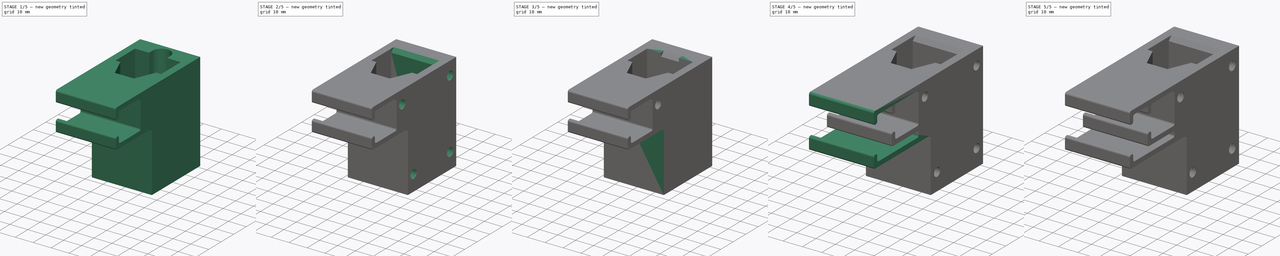
[diagram: build sequence overview — one tinted view per stage of 5, left to right]
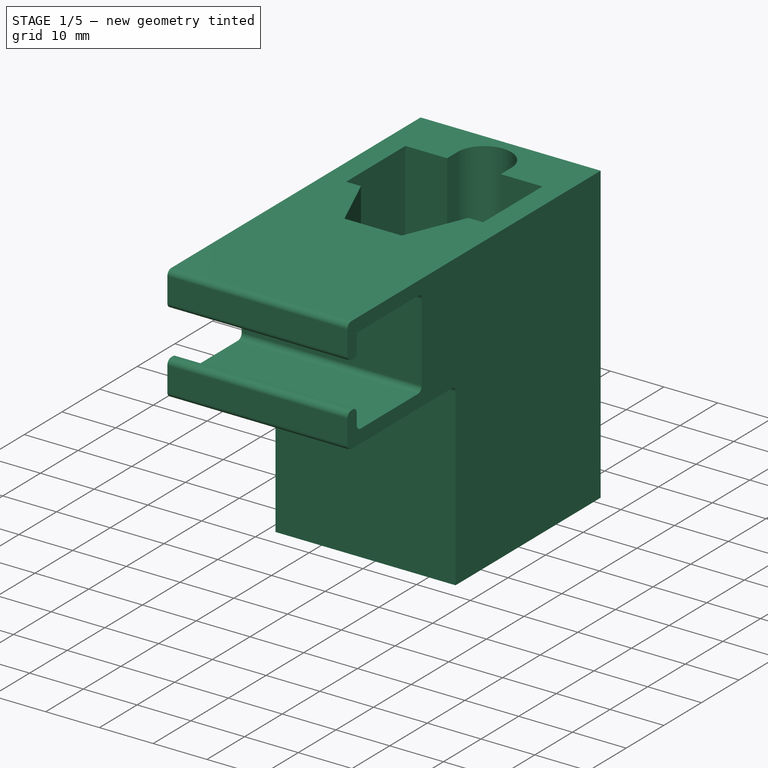
[diagram: stage 1 of 5 — iso view after this stage's code; geometry added in this stage tinted green]
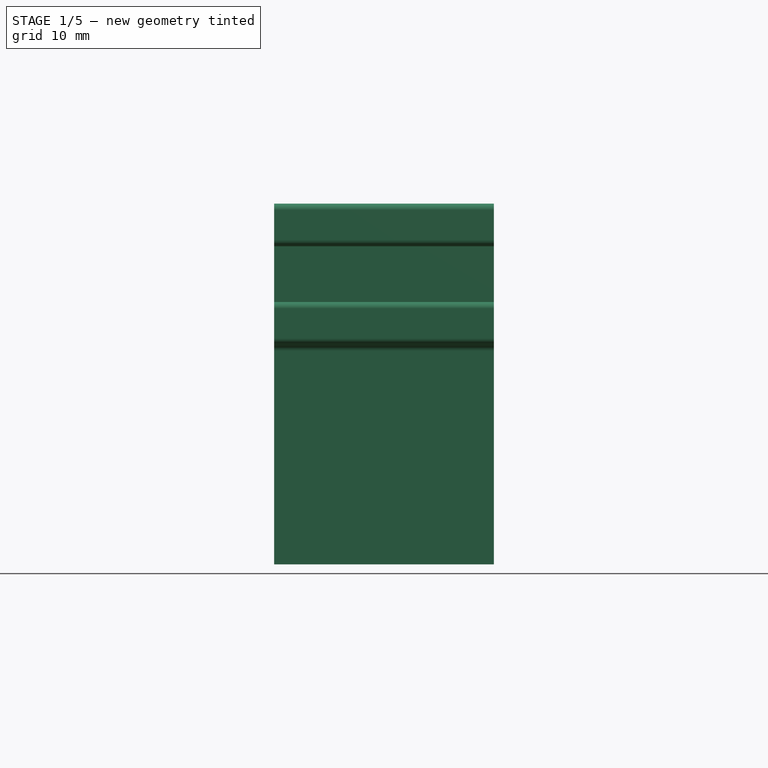
[diagram: stage 1 of 5 — front view after this stage's code; geometry added in this stage tinted green]
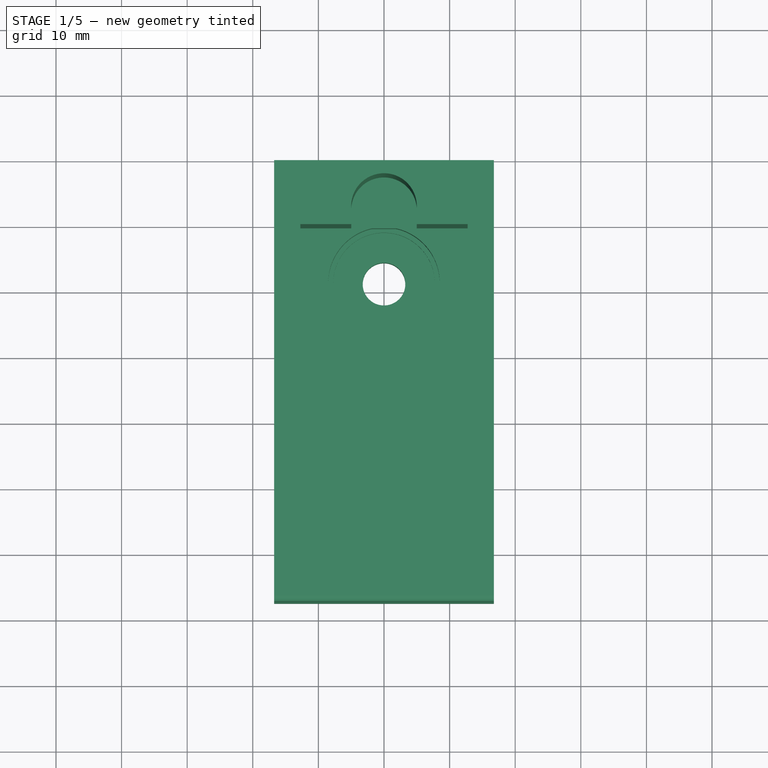
[diagram: stage 1 of 5 — top view after this stage's code; geometry added in this stage tinted green]
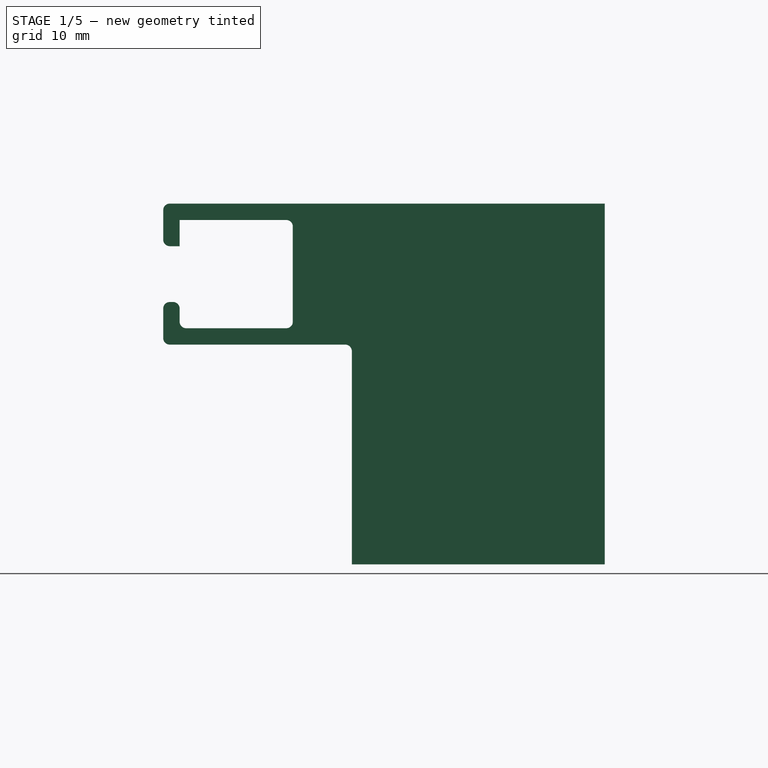
[diagram: stage 1 of 5 — right view after this stage's code; geometry added in this stage tinted green]
FCSTD DOCUMENT  (FreeCAD 1.0R39319 (Git))
Label: StarTech 1ft Adapter Mount
License: All rights reserved
LicenseURL: http://en.wikipedia.org/wiki/All_rights_reserved
objects: Sketcher::SketchObject×32, PartDesign::Pad×12, PartDesign::Pocket×12, PartDesign::SubtractiveHelix×8, PartDesign::Body×6, PartDesign::Fillet×4, PartDesign::Plane×4, PartDesign::FeatureBase×4, PartDesign::Chamfer×2, App::Part×2
note: 196 computed .brp shape members not serialized (recipe doc carries the construction recipe); baked Part::Feature solids carry a one-line shape summary decoded from their .brp

FEATURE [PartDesign::Body] Body002  label="-Right"
  AllowCompound = false
  Group = -> [Clone001,Sketch010,Pocket004]
  Origin = -> Origin002
  Tip = -> Pocket004
FEATURE [App::Part] Part  label="Top"
  Group = -> [Body,Body002,Body001]
  Origin = -> Origin003
FEATURE [Sketcher::SketchObject] Sketch016
  ArcFitTolerance = 1e-06
  AttachmentSupport = -> [XY_Plane004]
  FullyConstrained = true
  MakeInternals = false
  MapMode = 5
  sketch-geometry (23):
    g0: LineSegment StartX=-12.75 StartY=9.525 StartZ=0 EndX=-5 EndY=9.525 EndZ=0
    g1: LineSegment StartX=-5 StartY=9.525 StartZ=0 EndX=-5 EndY=12.275 EndZ=0
    g2: ArcOfCircle CenterX=-5e-16 CenterY=12.275 CenterZ=0 NormalX=0 NormalY=0 NormalZ=1 AngleXU=0 Radius=5 StartAngle=0 EndAngle=3.14159
    g3: LineSegment StartX=5 StartY=12.275 StartZ=0 EndX=5 EndY=9.525 EndZ=0
    g4: LineSegment StartX=5 StartY=9.525 StartZ=0 EndX=12.75 EndY=9.525 EndZ=0
    g5: LineSegment StartX=12.75 StartY=9.525 StartZ=0 EndX=12.75 EndY=-6.225 EndZ=0
    g6: LineSegment StartX=12.75 StartY=-6.225 StartZ=0 EndX=10 EndY=-6.225 EndZ=0
    g7: LineSegment StartX=10 StartY=-6.225 StartZ=0 EndX=5.32052 EndY=-17.275 EndZ=0
    g8: LineSegment StartX=5.32052 StartY=-17.275 StartZ=0 EndX=-5.32052 EndY=-17.275 EndZ=0
    g9: LineSegment StartX=-5.32052 StartY=-17.275 StartZ=0 EndX=-10 EndY=-6.225 EndZ=0
    g10: LineSegment StartX=-10 StartY=-6.225 StartZ=0 EndX=-12.75 EndY=-6.225 EndZ=0
    g11: LineSegment StartX=-12.75 StartY=-6.225 StartZ=0 EndX=-12.75 EndY=9.525 EndZ=0
    g12: LineSegment [constr] StartX=-5 StartY=9.525 StartZ=0 EndX=5 EndY=9.525 EndZ=0
    g13: LineSegment [constr] StartX=-10 StartY=-6.225 StartZ=0 EndX=10 EndY=-6.225 EndZ=0
    g14: LineSegment [constr] StartX=-6e-16 StartY=17.275 StartZ=0 EndX=-6e-16 EndY=9.525 EndZ=0
    g15: LineSegment [constr] StartX=-6e-16 StartY=17.275 StartZ=0 EndX=6e-16 EndY=-17.275 EndZ=0
    g16: LineSegment StartX=-16.75 StartY=-19.275 StartZ=0 EndX=16.75 EndY=-19.275 EndZ=0
    g17: LineSegment StartX=16.75 StartY=-19.275 StartZ=0 EndX=16.75 EndY=19.275 EndZ=0
    g18: LineSegment StartX=16.75 StartY=19.275 StartZ=0 EndX=-16.75 EndY=19.275 EndZ=0
    g19: LineSegment StartX=-16.75 StartY=19.275 StartZ=0 EndX=-16.75 EndY=-19.275 EndZ=0
    g20: GeomPoint [constr] X=0 Y=0 Z=0
    g21: LineSegment [constr] StartX=-6e-16 StartY=17.275 StartZ=0 EndX=1e-16 EndY=19.275 EndZ=0
    g22: LineSegment [constr] StartX=12.75 StartY=-6.225 StartZ=0 EndX=16.75 EndY=-6.225 EndZ=0
  constraints (60):
    c: Horizontal(g0)
    c: Coincident(g0,g1)
    c: Vertical(g1)
    c: Tangent(g1,g2) = 1.5708
    c: Vertical(g3)
    c: Coincident(g3,g4)
    c: Horizontal(g4)
    c: Coincident(g4,g5)
    c: Vertical(g5)
    c: Coincident(g5,g6)
    c: Horizontal(g6)
    c: Coincident(g6,g7)
    c: Coincident(g7,g8)
    c: Horizontal(g8)
    c: Coincident(g8,g9)
    c: Coincident(g9,g10)
    c: Horizontal(g10)
    c: Coincident(g10,g11)
    c: Coincident(g11,g0)
    c: Vertical(g11)
    c: Coincident(g12,g0)
    c: Coincident(g12,g3)
    c: Horizontal(g12)
    c: Coincident(g13,g9)
    c: Coincident(g13,g6)
    c: Horizontal(g13)
    c: Equal(g7,g9)
    c: Equal(g10,g6)
    c: Equal(g4,g0)
    c: Distance(g11) = 15.75
    c: Distance(g6) = 2.75
    c: Distance(g0) = 7.75
    c: Tangent(g2,g3) = 1.5708
    c: PointOnObject(g14,g2)
    c: Symmetric(g12,g12,g14)
    c: Vertical(g14)
    c: Distance(g14) = 7.75
    c: Distance(g12) = 10
    c: Coincident(g15,g14)
    c: Symmetric(g8,g8,g15)
    c: Symmetric(g14,g15,g-1)
    c: Distance(g15) = 34.55
    c: Distance(g9) = 12
    c: Coincident(g16,g17)
    c: Coincident(g17,g18)
    c: Coincident(g18,g19)
    c: Coincident(g19,g16)
    c: Horizontal(g16)
    c: Horizontal(g18)
    c: Vertical(g17)
    c: Vertical(g19)
    c: Symmetric(g18,g16,g20)
    c: Coincident(g20,g-1)
    c: Coincident(g21,g14)
    c: Symmetric(g18,g18,g21)
    c: Coincident(g22,g5)
    c: PointOnObject(g22,g17)
    c: Horizontal(g22)
    c: Distance(g21) = 2
    c: Distance(g22) = 4
FEATURE [PartDesign::Pad] Pad006
  Direction = (0,0,1)
  Length = 55
  Length2 = 10
  Profile = -> Sketch016
  ReferenceAxis = -> Sketch016 [N_Axis]
  Refine = true
  Suppressed = false
  Type = 0
FEATURE [Sketcher::SketchObject] Sketch017
  ArcFitTolerance = 1e-06
  AttachmentSupport = -> [Pad006]
  ExternalGeometry = -> [Pad006]
  FullyConstrained = true
  MakeInternals = false
  MapMode = 5
  Placement = pos=(0,0,0) rot=(1,0,0;3.14159rad)
  sketch-geometry (9):
    g0: LineSegment StartX=-16.75 StartY=19.275 StartZ=0 EndX=-16.75 EndY=-19.275 EndZ=0
    g1: LineSegment StartX=-16.75 StartY=-19.275 StartZ=0 EndX=16.75 EndY=-19.275 EndZ=0
    g2: LineSegment StartX=16.75 StartY=-19.275 StartZ=0 EndX=16.75 EndY=19.275 EndZ=0
    g3: LineSegment StartX=16.75 StartY=19.275 StartZ=0 EndX=-16.75 EndY=19.275 EndZ=0
    g4: LineSegment [constr] StartX=-5 StartY=-9.525 StartZ=0 EndX=5 EndY=-9.525 EndZ=0
    g5: LineSegment [constr] StartX=-4e-16 StartY=-9.525 StartZ=0 EndX=0 EndY=7.075 EndZ=0
    g6: Circle [constr] CenterX=-2e-16 CenterY=-1.225 CenterZ=0 NormalX=0 NormalY=0 NormalZ=1 AngleXU=0 Radius=8.5
    g7: ArcOfCircle CenterX=-1e-15 CenterY=-1.225 CenterZ=0 NormalX=0 NormalY=0 NormalZ=1 AngleXU=0 Radius=8.5 StartAngle=4.92975 EndAngle=10.7782
    g8: LineSegment StartX=-1.83303 StartY=-9.525 StartZ=0 EndX=1.83303 EndY=-9.525 EndZ=0
  constraints (23):
    c: Coincident(g0,g1)
    c: Coincident(g1,g2)
    c: Coincident(g2,g3)
    c: Coincident(g3,g0)
    c: Vertical(g0)
    c: Vertical(g2)
    c: Horizontal(g1)
    c: Horizontal(g3)
    c: Coincident(g0,g-3)
    c: Coincident(g1,g-4)
    c: Coincident(g4,g-5)
    c: Coincident(g4,g-6)
    c: Symmetric(g4,g4,g5)
    c: PointOnObject(g5,g-2)
    c: Distance(g5) = 16.6
    c: Diameter(g6) = 17
    c: Symmetric(g5,g5,g6)
    c: PointOnObject(g7,g4)
    c: PointOnObject(g7,g4)
    c: Tangent(g7,g6) = -1.5708
    c: Equal(g6,g7)
    c: Coincident(g8,g7)
    c: Coincident(g8,g7)
FEATURE [PartDesign::Pad] Pad007
  BaseFeature = -> Pad006
  Direction = (0,0,-1)
  Length = 18
  Length2 = 10
  Offset = 36.5
  Profile = -> Sketch017
  ReferenceAxis = -> Sketch017 [N_Axis]
  Refine = true
  Reversed = true
  Suppressed = false
  Type = 0
FEATURE [Sketcher::SketchObject] Sketch018
  ArcFitTolerance = 1e-06
  AttachmentSupport = -> [Pad007]
  ExternalGeometry = -> [Pad007]
  FullyConstrained = true
  MakeInternals = false
  MapMode = 5
  Placement = pos=(0,0,0) rot=(1,0,0;3.14159rad)
  sketch-geometry (5):
    g0: Circle CenterX=-1e-15 CenterY=-1.225 CenterZ=0 NormalX=0 NormalY=0 NormalZ=1 AngleXU=0 Radius=7.75
    g1: LineSegment StartX=-16.75 StartY=19.275 StartZ=0 EndX=-16.75 EndY=-19.275 EndZ=0
    g2: LineSegment StartX=-16.75 StartY=-19.275 StartZ=0 EndX=16.75 EndY=-19.275 EndZ=0
    g3: LineSegment StartX=16.75 StartY=-19.275 StartZ=0 EndX=16.75 EndY=19.275 EndZ=0
    g4: LineSegment StartX=16.75 StartY=19.275 StartZ=0 EndX=-16.75 EndY=19.275 EndZ=0
  constraints (12):
    c: Coincident(g0,g-3)
    c: Diameter(g0) = 15.5
    c: Coincident(g1,g2)
    c: Coincident(g2,g3)
    c: Coincident(g3,g4)
    c: Coincident(g4,g1)
    c: Vertical(g1)
    c: Vertical(g3)
    c: Horizontal(g2)
    c: Horizontal(g4)
    c: Coincident(g1,g-4)
    c: Coincident(g2,g-5)
FEATURE [PartDesign::Pad] Pad008
  BaseFeature = -> Pad007
  Direction = (0,0,-1)
  Length = 11
  Length2 = 10
  Profile = -> Sketch018
  ReferenceAxis = -> Sketch018 [N_Axis]
  Refine = true
  Reversed = true
  Suppressed = false
  Type = 0
FEATURE [Sketcher::SketchObject] Sketch019
  ArcFitTolerance = 1e-06
  AttachmentSupport = -> [Pad008]
  ExternalGeometry = -> [Pad008]
  FullyConstrained = true
  MakeInternals = false
  MapMode = 5
  Placement = pos=(0,0,0) rot=(1,0,0;3.14159rad)
  sketch-geometry (1):
    g0: Circle CenterX=0 CenterY=-1.225 CenterZ=0 NormalX=0 NormalY=0 NormalZ=1 AngleXU=0 Radius=9
  constraints (2):
    c: Coincident(g0,g-3)
    c: Diameter(g0) = 18
FEATURE [PartDesign::Pocket] Pocket006
  BaseFeature = -> Pad008
  Direction = (0,0,1)
  Length = 9
  Length2 = 5
  Profile = -> Sketch019
  ReferenceAxis = -> Sketch019 [N_Axis]
  Refine = true
  Suppressed = false
  Type = 0
FEATURE [Sketcher::SketchObject] Sketch020
  ArcFitTolerance = 1e-06
  AttachmentSupport = -> [Pocket006]
  ExternalGeometry = -> [Pocket006]
  FullyConstrained = true
  MakeInternals = false
  MapMode = 5
  Placement = pos=(0,0,0) rot=(1,0,0;3.14159rad)
  sketch-geometry (5):
    g0: Circle CenterX=0 CenterY=-1.225 CenterZ=0 NormalX=0 NormalY=0 NormalZ=1 AngleXU=0 Radius=3.25
    g1: LineSegment StartX=-16.75 StartY=19.275 StartZ=0 EndX=-16.75 EndY=-19.275 EndZ=0
    g2: LineSegment StartX=-16.75 StartY=-19.275 StartZ=0 EndX=16.75 EndY=-19.275 EndZ=0
    g3: LineSegment StartX=16.75 StartY=-19.275 StartZ=0 EndX=16.75 EndY=19.275 EndZ=0
    g4: LineSegment StartX=16.75 StartY=19.275 StartZ=0 EndX=-16.75 EndY=19.275 EndZ=0
  constraints (12):
    c: Coincident(g0,g-5)
    c: Coincident(g1,g2)
    c: Coincident(g2,g3)
    c: Coincident(g3,g4)
    c: Coincident(g4,g1)
    c: Vertical(g1)
    c: Vertical(g3)
    c: Horizontal(g2)
    c: Horizontal(g4)
    c: Coincident(g1,g-3)
    c: Coincident(g2,g-4)
    c: Diameter(g0) = 6.5
FEATURE [PartDesign::Pad] Pad009
  BaseFeature = -> Pocket006
  Direction = (0,0,-1)
  Length = 6
  Length2 = 10
  Profile = -> Sketch020
  ReferenceAxis = -> Sketch020 [N_Axis]
  Refine = true
  Reversed = true
  Suppressed = false
  Type = 0
FEATURE [Sketcher::SketchObject] Sketch021
  ArcFitTolerance = 1e-06
  AttachmentSupport = -> [Pad009]
  ExternalGeometry = -> [Pad009]
  FullyConstrained = true
  MakeInternals = false
  MapMode = 5
  Placement = pos=(16.75,0,0) rot=(0.57735,0.57735,0.57735;2.0944rad)
  sketch-geometry (4):
    g0: LineSegment StartX=-19.275 StartY=55 StartZ=0 EndX=-48.025 EndY=55 EndZ=0
    g1: LineSegment StartX=-48.025 StartY=55 StartZ=0 EndX=-48.025 EndY=33.5 EndZ=0
    g2: LineSegment StartX=-48.025 StartY=33.5 StartZ=0 EndX=-19.275 EndY=33.5 EndZ=0
    g3: LineSegment StartX=-19.275 StartY=33.5 StartZ=0 EndX=-19.275 EndY=55 EndZ=0
  constraints (11):
    c: Coincident(g0,g1)
    c: Coincident(g1,g2)
    c: Coincident(g2,g3)
    c: Coincident(g3,g0)
    c: Horizontal(g0)
    c: Horizontal(g2)
    c: Vertical(g1)
    c: Vertical(g3)
    c: Coincident(g0,g-3)
    c: Distance(g0) = 28.75
    c: Distance(g1) = 21.5
FEATURE [PartDesign::Pad] Pad010
  BaseFeature = -> Pad009
  Direction = (1,0,0)
  Length = 10
  Length2 = 10
  Profile = -> Sketch021
  ReferenceAxis = -> Sketch021 [N_Axis]
  Refine = true
  Suppressed = false
  Type = 3
  UpToFace = -> Pad009 [Face26]
FEATURE [Sketcher::SketchObject] Sketch022
  ArcFitTolerance = 1e-06
  AttachmentSupport = -> [Pad010]
  ExternalGeometry = -> [Pad010]
  FullyConstrained = true
  MakeInternals = false
  MapMode = 5
  Placement = pos=(16.75,0,0) rot=(0.57735,0.57735,0.57735;2.0944rad)
  sketch-geometry (17):
    g0: LineSegment StartX=-48.025 StartY=48.5 StartZ=0 EndX=-48.025 EndY=40 EndZ=0
    g1: LineSegment StartX=-48.025 StartY=40 StartZ=0 EndX=-45.525 EndY=40 EndZ=0
    g2: LineSegment StartX=-45.525 StartY=40 StartZ=0 EndX=-45.525 EndY=36 EndZ=0
    g3: LineSegment StartX=-45.525 StartY=36 StartZ=0 EndX=-28.275 EndY=36 EndZ=0
    g4: LineSegment StartX=-28.275 StartY=36 StartZ=0 EndX=-28.275 EndY=52.5 EndZ=0
    g5: LineSegment StartX=-28.275 StartY=52.5 StartZ=0 EndX=-45.525 EndY=52.5 EndZ=0
    g6: LineSegment StartX=-45.525 StartY=52.5 StartZ=0 EndX=-45.525 EndY=48.5 EndZ=0
    g7: LineSegment StartX=-45.525 StartY=48.5 StartZ=0 EndX=-48.025 EndY=48.5 EndZ=0
    g8: LineSegment [constr] StartX=-48.025 StartY=55 StartZ=0 EndX=-48.025 EndY=52.5 EndZ=0
    g9: LineSegment [constr] StartX=-48.025 StartY=52.5 StartZ=0 EndX=-45.525 EndY=52.5 EndZ=0
    g10: LineSegment [constr] StartX=-45.525 StartY=52.5 StartZ=0 EndX=-45.525 EndY=55 EndZ=0
    g11: LineSegment [constr] StartX=-45.525 StartY=55 StartZ=0 EndX=-48.025 EndY=55 EndZ=0
    g12: LineSegment [constr] StartX=-48.025 StartY=33.5 StartZ=0 EndX=-45.525 EndY=33.5 EndZ=0
    g13: LineSegment [constr] StartX=-45.525 StartY=33.5 StartZ=0 EndX=-45.525 EndY=36 EndZ=0
    g14: LineSegment [constr] StartX=-45.525 StartY=36 StartZ=0 EndX=-48.025 EndY=36 EndZ=0
    g15: LineSegment [constr] StartX=-48.025 StartY=36 StartZ=0 EndX=-48.025 EndY=33.5 EndZ=0
    g16: LineSegment [constr] StartX=-45.525 StartY=48.5 StartZ=0 EndX=-45.525 EndY=40 EndZ=0
  constraints (46):
    c: PointOnObject(g0,g-3)
    c: PointOnObject(g0,g-3)
    c: Coincident(g0,g1)
    c: Horizontal(g1)
    c: Coincident(g1,g2)
    c: Vertical(g2)
    c: Coincident(g2,g3)
    c: Horizontal(g3)
    c: Coincident(g3,g4)
    c: Vertical(g4)
    c: Coincident(g4,g5)
    c: Horizontal(g5)
    c: Coincident(g5,g6)
    c: Vertical(g6)
    c: Coincident(g6,g7)
    c: Coincident(g7,g0)
    c: Horizontal(g7)
    c: Coincident(g8,g9)
    c: Coincident(g9,g10)
    c: Coincident(g10,g11)
    c: Coincident(g11,g8)
    c: Vertical(g8)
    c: Vertical(g10)
    c: Horizontal(g9)
    c: Horizontal(g11)
    c: Coincident(g8,g-3)
    c: Coincident(g9,g5)
    c: Coincident(g12,g13)
    c: Coincident(g13,g14)
    c: Coincident(g14,g15)
    c: Coincident(g15,g12)
    c: Horizontal(g12)
    c: Horizontal(g14)
    c: Vertical(g13)
    c: Vertical(g15)
    c: Coincident(g12,g-3)
    c: Coincident(g13,g2)
    c: Coincident(g16,g6)
    c: Coincident(g16,g1)
    c: Vertical(g16)
    c: Equal(g10,g13)
    c: Distance(g10) = 2.5
    c: Distance(g9) = 2.5
    c: Distance(g6) = 4
    c: Equal(g6,g2)
    c: Distance(g5) = 17.25
FEATURE [PartDesign::Pocket] Pocket007
  BaseFeature = -> Pad010
  Direction = (-1,0,0)
  Length = 5
  Length2 = 5
  Profile = -> Sketch022
  ReferenceAxis = -> Sketch022 [N_Axis]
  Refine = true
  Suppressed = false
  Type = 1
FEATURE [PartDesign::Fillet] Fillet002
  Base = -> Pocket007 [Edge40,Edge53,Edge56,Edge10,Edge39,Edge60,Edge57,Edge59,Edge58]
  BaseFeature = -> Pocket007
  Radius = 1
  Refine = true
  SupportTransform = false
  Suppressed = false
  UseAllEdges = false
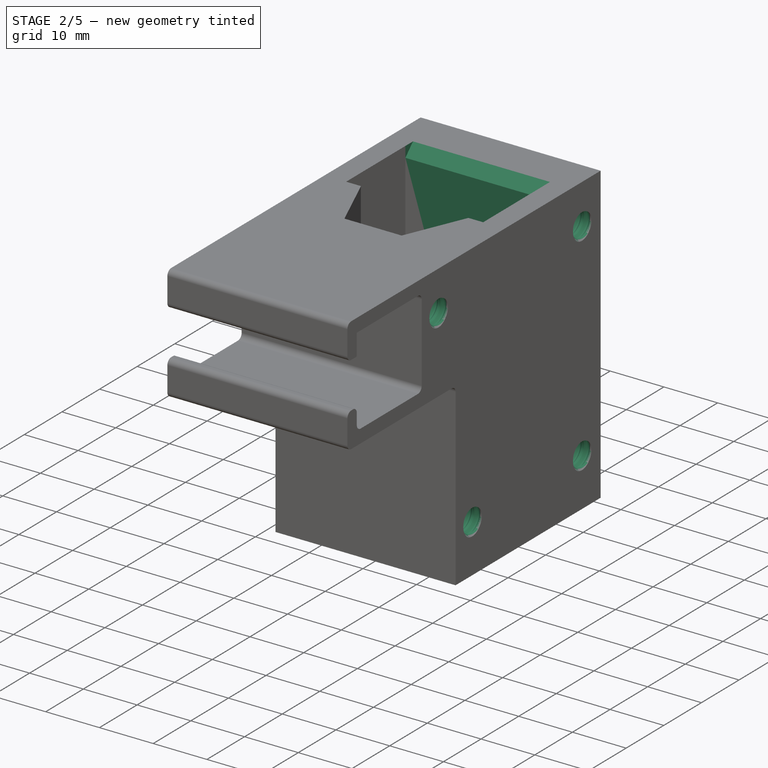
[diagram: stage 2 of 5 — iso view after this stage's code; geometry added in this stage tinted green]
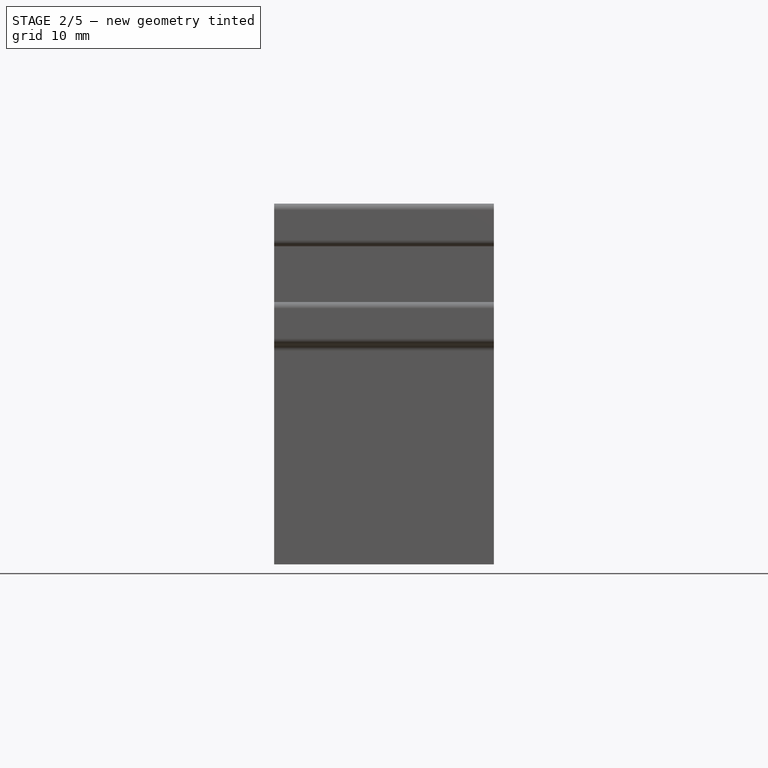
[diagram: stage 2 of 5 — front view after this stage's code; geometry added in this stage tinted green]
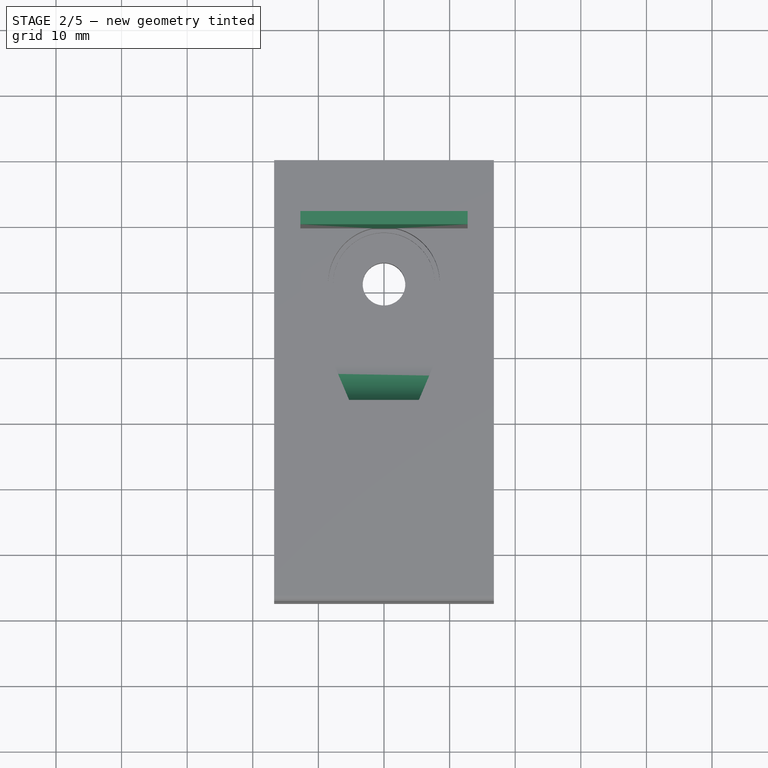
[diagram: stage 2 of 5 — top view after this stage's code; geometry added in this stage tinted green]
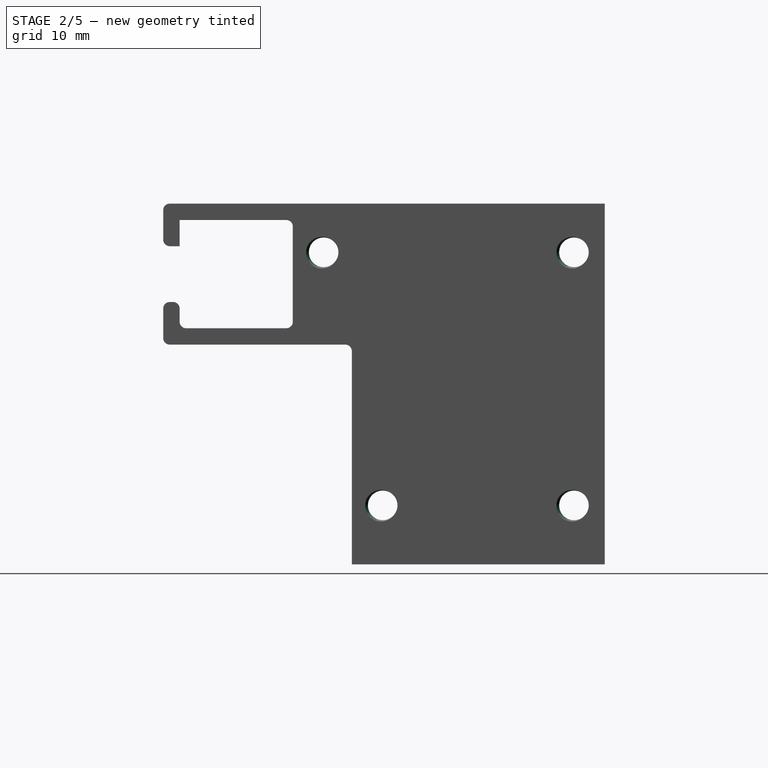
[diagram: stage 2 of 5 — right view after this stage's code; geometry added in this stage tinted green]
FEATURE [Sketcher::SketchObject] Sketch023
  ArcFitTolerance = 1e-06
  AttachmentSupport = -> [Fillet002]
  ExternalGeometry = -> [Fillet002]
  FullyConstrained = true
  MakeInternals = false
  MapMode = 5
  Placement = pos=(0,0,18) rot=(0,0,1;0rad)
  sketch-geometry (4):
    g0: LineSegment StartX=-5 StartY=9.525 StartZ=0 EndX=5 EndY=9.525 EndZ=0
    g1: LineSegment StartX=5 StartY=9.525 StartZ=0 EndX=5 EndY=19.275 EndZ=0
    g2: LineSegment StartX=5 StartY=19.275 StartZ=0 EndX=-5 EndY=19.275 EndZ=0
    g3: LineSegment StartX=-5 StartY=19.275 StartZ=0 EndX=-5 EndY=9.525 EndZ=0
  constraints (10):
    c: Coincident(g0,g1)
    c: Coincident(g1,g2)
    c: Coincident(g2,g3)
    c: Coincident(g3,g0)
    c: Horizontal(g2)
    c: Vertical(g1)
    c: Vertical(g3)
    c: Coincident(g0,g-3)
    c: PointOnObject(g1,g-5)
    c: Coincident(g0,g-4)
FEATURE [PartDesign::Pad] Pad011
  BaseFeature = -> Fillet002
  Direction = (0,0,1)
  Length = 10
  Length2 = 10
  Profile = -> Sketch023
  ReferenceAxis = -> Sketch023 [N_Axis]
  Refine = true
  Suppressed = false
  Type = 3
  UpToFace = -> Fillet002 [Face6]
FEATURE [Sketcher::SketchObject] Sketch024
  ArcFitTolerance = 1e-06
  AttachmentSupport = -> [Pad011]
  ExternalGeometry = -> [Pad011]
  FullyConstrained = true
  MakeInternals = false
  MapMode = 5
  Placement = pos=(16.75,0,0) rot=(0.57735,0.57735,0.57735;2.0944rad)
  sketch-geometry (42):
    g0: Circle CenterX=14.575 CenterY=47.5729 CenterZ=0 NormalX=0 NormalY=0 NormalZ=1 AngleXU=0 Radius=0.5
    g1: LineSegment [constr] StartX=14.575 StartY=53 StartZ=0 EndX=9.875 EndY=50.2865 EndZ=0
    g2: LineSegment [constr] StartX=9.875 StartY=50.2865 StartZ=0 EndX=9.875 EndY=44.8594 EndZ=0
    g3: LineSegment [constr] StartX=9.875 StartY=44.8594 StartZ=0 EndX=14.575 EndY=42.1458 EndZ=0
    g4: LineSegment [constr] StartX=14.575 StartY=42.1458 StartZ=0 EndX=19.275 EndY=44.8594 EndZ=0
    g5: LineSegment [constr] StartX=19.275 StartY=44.8594 StartZ=0 EndX=19.275 EndY=50.2865 EndZ=0
    g6: LineSegment [constr] StartX=19.275 StartY=50.2865 StartZ=0 EndX=14.575 EndY=53 EndZ=0
    g7: Circle [constr] CenterX=14.575 CenterY=47.5729 CenterZ=0 NormalX=0 NormalY=0 NormalZ=1 AngleXU=0 Radius=5.42709
    g8: LineSegment [constr] StartX=9.875 StartY=44.8594 StartZ=0 EndX=19.275 EndY=44.8594 EndZ=0
    g9: Circle CenterX=14.575 CenterY=9 CenterZ=0 NormalX=0 NormalY=0 NormalZ=1 AngleXU=0 Radius=0.5
    g10: LineSegment [constr] StartX=14.575 StartY=14.4271 StartZ=0 EndX=9.875 EndY=11.7135 EndZ=0
    g11: LineSegment [constr] StartX=9.875 StartY=11.7135 StartZ=0 EndX=9.875 EndY=6.28645 EndZ=0
    g12: LineSegment [constr] StartX=9.875 StartY=6.28645 StartZ=0 EndX=14.575 EndY=3.57291 EndZ=0
    g13: LineSegment [constr] StartX=14.575 StartY=3.57291 StartZ=0 EndX=19.275 EndY=6.28645 EndZ=0
    g14: LineSegment [constr] StartX=19.275 StartY=6.28645 StartZ=0 EndX=19.275 EndY=11.7135 EndZ=0
    g15: LineSegment [constr] StartX=19.275 StartY=11.7135 StartZ=0 EndX=14.575 EndY=14.4271 EndZ=0
    g16: Circle [constr] CenterX=14.575 CenterY=9 CenterZ=0 NormalX=0 NormalY=0 NormalZ=1 AngleXU=0 Radius=5.42709
    g17: LineSegment [constr] StartX=9.875 StartY=6.28645 StartZ=0 EndX=19.275 EndY=6.28645 EndZ=0
    g18: Circle CenterX=-14.575 CenterY=9 CenterZ=0 NormalX=0 NormalY=0 NormalZ=1 AngleXU=0 Radius=0.5
    g19: LineSegment [constr] StartX=-14.575 StartY=14.4271 StartZ=0 EndX=-19.275 EndY=11.7135 EndZ=0
    g20: LineSegment [constr] StartX=-19.275 StartY=11.7135 StartZ=0 EndX=-19.275 EndY=6.28645 EndZ=0
    g21: LineSegment [constr] StartX=-19.275 StartY=6.28645 StartZ=0 EndX=-14.575 EndY=3.57291 EndZ=0
    g22: LineSegment [constr] StartX=-14.575 StartY=3.57291 StartZ=0 EndX=-9.875 EndY=6.28645 EndZ=0
    g23: LineSegment [constr] StartX=-9.875 StartY=6.28645 StartZ=0 EndX=-9.875 EndY=11.7135 EndZ=0
    g24: LineSegment [constr] StartX=-9.875 StartY=11.7135 StartZ=0 EndX=-14.575 EndY=14.4271 EndZ=0
    g25: Circle [constr] CenterX=-14.575 CenterY=9 CenterZ=0 NormalX=0 NormalY=0 NormalZ=1 AngleXU=0 Radius=5.42709
    g26: LineSegment [constr] StartX=-19.275 StartY=6.28645 StartZ=0 EndX=-9.875 EndY=6.28645 EndZ=0
    g27: Circle CenterX=-23.575 CenterY=47.5729 CenterZ=0 NormalX=0 NormalY=0 NormalZ=1 AngleXU=0 Radius=0.5
    g28: LineSegment [constr] StartX=-23.575 StartY=53 StartZ=0 EndX=-28.275 EndY=50.2865 EndZ=0
    g29: LineSegment [constr] StartX=-28.275 StartY=50.2865 StartZ=0 EndX=-28.275 EndY=44.8594 EndZ=0
    g30: LineSegment [constr] StartX=-28.275 StartY=44.8594 StartZ=0 EndX=-23.575 EndY=42.1458 EndZ=0
    g31: LineSegment [constr] StartX=-23.575 StartY=42.1458 StartZ=0 EndX=-18.875 EndY=44.8594 EndZ=0
    g32: LineSegment [constr] StartX=-18.875 StartY=44.8594 StartZ=0 EndX=-18.875 EndY=50.2865 EndZ=0
    g33: LineSegment [constr] StartX=-18.875 StartY=50.2865 StartZ=0 EndX=-23.575 EndY=53 EndZ=0
    g34: Circle [constr] CenterX=-23.575 CenterY=47.5729 CenterZ=0 NormalX=0 NormalY=0 NormalZ=1 AngleXU=0 Radius=5.42709
    g35: LineSegment [constr] StartX=-28.275 StartY=44.8594 StartZ=0 EndX=-18.875 EndY=44.8594 EndZ=0
    g36: LineSegment [constr] StartX=-23.575 StartY=53 StartZ=0 EndX=-23.575 EndY=55 EndZ=0
    g37: LineSegment [constr] StartX=-23.575 StartY=55 StartZ=0 EndX=-17.275 EndY=55 EndZ=0
    g38: LineSegment [constr] StartX=14.575 StartY=53 StartZ=0 EndX=14.575 EndY=55 EndZ=0
    g39: LineSegment [constr] StartX=14.575 StartY=55 StartZ=0 EndX=9.525 EndY=55 EndZ=0
    g40: LineSegment [constr] StartX=-6.525 StartY=9 StartZ=0 EndX=-19.275 EndY=9 EndZ=0
    g41: LineSegment [constr] StartX=8.975 StartY=9 StartZ=0 EndX=19.275 EndY=9 EndZ=0
  constraints (100):
    c: Coincident(g1,g2)
    c: Coincident(g2,g3)
    c: Coincident(g3,g4)
    c: Coincident(g4,g5)
    c: Coincident(g5,g6)
    c: Coincident(g6,g1)
    c: Equal(g1, g2-g6) x5
    c: PointOnObject(g1,g7)
    c: PointOnObject(g2,g7)
    c: PointOnObject(g3,g7)
    c: PointOnObject(g4,g7)
    c: PointOnObject(g5,g7)
    c: PointOnObject(g6,g7)
    c: Coincident(g7,g0)
    c: Coincident(g8,g2)
    c: Coincident(g8,g4)
    c: Horizontal(g8)
    c: Diameter(g0) = 1
    c: Distance(g8) = 9.4
    c: Coincident(g10,g11)
    c: Coincident(g11,g12)
    c: Coincident(g12,g13)
    c: Coincident(g13,g14)
    c: Coincident(g14,g15)
    c: Coincident(g15,g10)
    c: Equal(g10, g11-g15) x5
    c: PointOnObject(g10,g16)
    c: PointOnObject(g11,g16)
    c: PointOnObject(g12,g16)
    c: PointOnObject(g13,g16)
    c: PointOnObject(g14,g16)
    c: PointOnObject(g15,g16)
    c: Coincident(g16,g9)
    c: Coincident(g17,g11)
    c: Coincident(g17,g13)
    c: Horizontal(g17)
    c: Diameter(g9) = 1
    c: Distance(g17) = 9.4
    c: Coincident(g19,g20)
    c: Coincident(g20,g21)
    c: Coincident(g21,g22)
    c: Coincident(g22,g23)
    c: Coincident(g23,g24)
    c: Coincident(g24,g19)
    c: Equal(g19, g20-g24) x5
    c: PointOnObject(g19,g25)
    c: PointOnObject(g20,g25)
    c: PointOnObject(g21,g25)
    c: PointOnObject(g22,g25)
    c: PointOnObject(g23,g25)
    c: PointOnObject(g24,g25)
    c: Coincident(g25,g18)
    c: Coincident(g26,g20)
    c: Coincident(g26,g22)
    c: Horizontal(g26)
    c: Distance(g26) = 9.4
    c: Coincident(g28,g29)
    c: Coincident(g29,g30)
    c: Coincident(g30,g31)
    c: Coincident(g31,g32)
    c: Coincident(g32,g33)
    c: Coincident(g33,g28)
    c: Equal(g28, g29-g33) x5
    c: PointOnObject(g28,g34)
    c: PointOnObject(g29,g34)
    c: PointOnObject(g30,g34)
    c: PointOnObject(g31,g34)
    c: PointOnObject(g32,g34)
    c: PointOnObject(g33,g34)
    c: Coincident(g34,g27)
    c: Coincident(g35,g29)
    c: Coincident(g35,g31)
    c: Horizontal(g35)
    c: Diameter(g27) = 1
    c: Distance(g35) = 9.4
    c: PointOnObject(g29,g-8)
    c: PointOnObject(g4,g-3)
    c: Coincident(g28,g36)
    c: Vertical(g36)
    c: Coincident(g36,g37)
    c: Coincident(g37,g-5)
    c: Horizontal(g37)
    c: Coincident(g1,g38)
    c: Vertical(g38)
    c: Coincident(g38,g39)
    c: Coincident(g39,g-4)
    c: Horizontal(g39)
    c: Equal(g36,g38)
    c: Distance(g36) = 2
    c: Coincident(g40,g-6)
    c: PointOnObject(g40,g-7)
    c: Horizontal(g40)
    c: Coincident(g41,g-6)
    c: PointOnObject(g41,g14)
    c: Horizontal(g41)
    c: PointOnObject(g18,g40)
    c: PointOnObject(g9,g41)
    c: PointOnObject(g20,g-7)
    c: PointOnObject(g13,g-3)
    c: Equal(g18,g9)
FEATURE [PartDesign::Pocket] Pocket008
  BaseFeature = -> Pad011
  Direction = (-1,0,0)
  Length = 5
  Length2 = 5
  Profile = -> Sketch024
  ReferenceAxis = -> Sketch024 [N_Axis]
  Refine = true
  Suppressed = false
  Type = 1
FEATURE [PartDesign::Chamfer] Chamfer001
  Angle = 45
  Base = -> Pocket008 [Edge62]
  BaseFeature = -> Pocket008
  ChamferType = 0
  FlipDirection = false
  Refine = true
  Size = 2
  Size2 = 1
  SupportTransform = false
  Suppressed = false
  UseAllEdges = false
FEATURE [PartDesign::Fillet] Fillet003
  Base = -> Chamfer001 [Edge28]
  BaseFeature = -> Chamfer001
  Radius = 6
  Refine = true
  SupportTransform = false
  Suppressed = false
  UseAllEdges = false
FEATURE [PartDesign::Plane] DatumPlane003
  AttachmentOffset = pos=(0,0,0) rot=(0,1,0;1.5708rad)
  AttachmentSupport = -> [Fillet003]
  Length = 62.0851
  MapMode = 11
  Placement = pos=(-16.75,-23.575,47.5729) rot=(0,0,1;3.14159rad)
  ResizeMode = 0
  Width = 85.1101
FEATURE [PartDesign::Plane] DatumPlane004
  AttachmentOffset = pos=(0,0,0) rot=(0,1,0;1.5708rad)
  AttachmentSupport = -> [Fillet003]
  Length = 62.0851
  MapMode = 11
  Placement = pos=(-16.75,14.575,9) rot=(0,0,1;3.14159rad)
  ResizeMode = 0
  Width = 85.1101
FEATURE [Sketcher::SketchObject] Sketch027
  ArcFitTolerance = 1e-06
  AttachmentSupport = -> [DatumPlane003]
  ExternalGeometry = -> [Fillet003]
  FullyConstrained = true
  MakeInternals = false
  MapMode = 5
  Placement = pos=(-16.75,-23.575,47.5729) rot=(0,0,1;3.14159rad)
  sketch-geometry (13):
    g0: LineSegment [constr] StartX=0 StartY=-38.15 StartZ=0 EndX=1.2 EndY=-38.15 EndZ=0
    g1: LineSegment [constr] StartX=1.2 StartY=-38.15 StartZ=0 EndX=1.2 EndY=-35.9 EndZ=0
    g2: LineSegment StartX=1.2 StartY=-35.9 StartZ=0 EndX=2.3 EndY=-35.9 EndZ=0
    g3: LineSegment StartX=2.3 StartY=-35.9 StartZ=0 EndX=1.9 EndY=-35.5 EndZ=0
    g4: LineSegment StartX=1.9 StartY=-35.5 StartZ=0 EndX=1.6 EndY=-35.5 EndZ=0
    g5: LineSegment StartX=1.6 StartY=-35.5 StartZ=0 EndX=1.2 EndY=-35.9 EndZ=0
    g6: LineSegment [constr] StartX=2.3 StartY=-35.9 StartZ=0 EndX=2.3 EndY=-38.15 EndZ=0
    g7: LineSegment [constr] StartX=2.3 StartY=-38.15 StartZ=0 EndX=1.2 EndY=-38.15 EndZ=0
    g8: LineSegment [constr] StartX=1.6 StartY=-35.5 StartZ=0 EndX=1.6 EndY=-38.15 EndZ=0
    g9: LineSegment [constr] StartX=1.9 StartY=-35.5 StartZ=0 EndX=1.9 EndY=-35.9 EndZ=0
    g10: LineSegment [constr] StartX=1.9 StartY=-35.9 StartZ=0 EndX=2.3 EndY=-35.9 EndZ=0
    g11: LineSegment [constr] StartX=2.3 StartY=-35.9 StartZ=0 EndX=2.3 EndY=-35.5 EndZ=0
    g12: LineSegment [constr] StartX=2.3 StartY=-35.5 StartZ=0 EndX=1.9 EndY=-35.5 EndZ=0
  constraints (35):
    c: Distance(g0) = 1.2
    c: Symmetric(g-3,g-3,g0)
    c: Horizontal(g0)
    c: Coincident(g1,g0)
    c: Vertical(g1)
    c: Coincident(g1,g2)
    c: Horizontal(g2)
    c: Coincident(g2,g3)
    c: Coincident(g3,g4)
    c: Horizontal(g4)
    c: Coincident(g4,g5)
    c: Coincident(g5,g2)
    c: Coincident(g6,g2)
    c: Vertical(g6)
    c: Coincident(g7,g6)
    c: Coincident(g7,g0)
    c: Coincident(g8,g4)
    c: PointOnObject(g8,g7)
    c: Vertical(g8)
    c: Horizontal(g7)
    c: Coincident(g9,g10)
    c: Coincident(g10,g11)
    c: Coincident(g11,g12)
    c: Coincident(g12,g9)
    c: Vertical(g9)
    c: Vertical(g11)
    c: Horizontal(g10)
    c: Horizontal(g12)
    c: Coincident(g9,g3)
    c: Coincident(g10,g2)
    c: Equal(g12,g11)
    c: DistanceY(g11,g11) = 0.4
    c: DistanceY(g8,g8) = 2.65
    c: DistanceX(g4,g4) = 0.3
    c: Equal(g3,g5)
FEATURE [Sketcher::SketchObject] Sketch028
  ArcFitTolerance = 1e-06
  AttachmentSupport = -> [DatumPlane003]
  ExternalGeometry = -> [Fillet003,Sketch027]
  FullyConstrained = true
  MakeInternals = false
  MapMode = 5
  Placement = pos=(-16.75,-23.575,47.5729) rot=(0,0,1;3.14159rad)
  sketch-geometry (14):
    g0: LineSegment [constr] StartX=0 StartY=-38.15 StartZ=0 EndX=1.2 EndY=-38.15 EndZ=0
    g1: LineSegment [constr] StartX=1.2 StartY=-38.15 StartZ=0 EndX=1.2 EndY=-35.9 EndZ=0
    g2: LineSegment [constr] StartX=1.2 StartY=-35.9 StartZ=0 EndX=0 EndY=-35.9 EndZ=0
    g3: LineSegment [constr] StartX=0 StartY=-35.9 StartZ=0 EndX=0 EndY=-38.15 EndZ=0
    g4: LineSegment [constr] StartX=0 StartY=0 StartZ=0 EndX=1.2 EndY=0 EndZ=0
    g5: LineSegment [constr] StartX=1.2 StartY=0 StartZ=0 EndX=1.2 EndY=2.25 EndZ=0
    g6: LineSegment [constr] StartX=1.2 StartY=2.25 StartZ=0 EndX=0 EndY=2.25 EndZ=0
    g7: LineSegment [constr] StartX=0 StartY=2.25 StartZ=0 EndX=0 EndY=0 EndZ=0
    g8: LineSegment StartX=1.2 StartY=2.25 StartZ=0 EndX=2.3 EndY=2.25 EndZ=0
    g9: LineSegment StartX=2.3 StartY=2.25 StartZ=0 EndX=1.9 EndY=2.65 EndZ=0
    g10: LineSegment StartX=1.9 StartY=2.65 StartZ=0 EndX=1.6 EndY=2.65 EndZ=0
    g11: LineSegment StartX=1.6 StartY=2.65 StartZ=0 EndX=1.2 EndY=2.25 EndZ=0
    g12: LineSegment [constr] StartX=1.9 StartY=-35.5 StartZ=0 EndX=1.9 EndY=2.65 EndZ=0
    g13: LineSegment [constr] StartX=1.6 StartY=2.65 StartZ=0 EndX=1.6 EndY=2.25 EndZ=0
  constraints (37):
    c: Coincident(g0,g1)
    c: Coincident(g1,g2)
    c: Coincident(g2,g3)
    c: Coincident(g3,g0)
    c: Horizontal(g0)
    c: Horizontal(g2)
    c: Vertical(g1)
    c: Vertical(g3)
    c: Symmetric(g-5,g-5,g0)
    c: Coincident(g4,g5)
    c: Coincident(g5,g6)
    c: Coincident(g6,g7)
    c: Coincident(g7,g4)
    c: Horizontal(g4)
    c: Horizontal(g6)
    c: Vertical(g5)
    c: Vertical(g7)
    c: Coincident(g4,g-1)
    c: Equal(g4,g0)
    c: Equal(g1,g5)
    c: Coincident(g5,g8)
    c: Horizontal(g8)
    c: Coincident(g8,g9)
    c: Coincident(g9,g10)
    c: Coincident(g10,g11)
    c: Coincident(g11,g8)
    c: Horizontal(g10)
    c: Equal(g8,g-4)
    c: Coincident(g-4,g1)
    c: Equal(g10,g-6)
    c: Coincident(g12,g-6)
    c: Coincident(g12,g9)
    c: Vertical(g12)
    c: Coincident(g13,g10)
    c: PointOnObject(g13,g8)
    c: Vertical(g13)
    c: DistanceY(g13,g13) = 0.4
FEATURE [Sketcher::SketchObject] Sketch029
  ArcFitTolerance = 1e-06
  AttachmentSupport = -> [DatumPlane004]
  ExternalGeometry = -> [Fillet003,Sketch027]
  FullyConstrained = true
  MakeInternals = false
  MapMode = 5
  Placement = pos=(-16.75,14.575,9) rot=(0,0,1;3.14159rad)
  sketch-geometry (4):
    g0: LineSegment StartX=1.2 StartY=2.25 StartZ=0 EndX=2.3 EndY=2.25 EndZ=0
    g1: LineSegment StartX=2.3 StartY=2.25 StartZ=0 EndX=1.9 EndY=2.65 EndZ=0
    g2: LineSegment StartX=1.9 StartY=2.65 StartZ=0 EndX=1.6 EndY=2.65 EndZ=0
    g3: LineSegment StartX=1.6 StartY=2.65 StartZ=0 EndX=1.2 EndY=2.25 EndZ=0
  constraints (8):
    c: Coincident(g-4,g0)
    c: Coincident(g0,g-4)
    c: Coincident(g0,g1)
    c: Coincident(g1,g-5)
    c: Coincident(g1,g2)
    c: Coincident(g2,g-5)
    c: Coincident(g2,g3)
    c: Coincident(g3,g0)
FEATURE [Sketcher::SketchObject] Sketch030
  ArcFitTolerance = 1e-06
  AttachmentSupport = -> [DatumPlane004]
  ExternalGeometry = -> [Fillet003,Sketch029]
  FullyConstrained = true
  MakeInternals = false
  MapMode = 5
  Placement = pos=(-16.75,14.575,9) rot=(0,0,1;3.14159rad)
  sketch-geometry (16):
    g0: LineSegment [constr] StartX=0 StartY=0 StartZ=0 EndX=2.3 EndY=0 EndZ=0
    g1: LineSegment [constr] StartX=2.3 StartY=0 StartZ=0 EndX=2.3 EndY=2.25 EndZ=0
    g2: LineSegment [constr] StartX=2.3 StartY=2.25 StartZ=0 EndX=0 EndY=2.25 EndZ=0
    g3: LineSegment [constr] StartX=0 StartY=2.25 StartZ=0 EndX=0 EndY=0 EndZ=0
    g4: LineSegment [constr] StartX=0 StartY=29.15 StartZ=0 EndX=2.3 EndY=29.15 EndZ=0
    g5: LineSegment [constr] StartX=2.3 StartY=29.15 StartZ=0 EndX=2.3 EndY=31.4 EndZ=0
    g6: LineSegment [constr] StartX=2.3 StartY=31.4 StartZ=0 EndX=0 EndY=31.4 EndZ=0
    g7: LineSegment [constr] StartX=0 StartY=31.4 StartZ=0 EndX=0 EndY=29.15 EndZ=0
    g8: LineSegment StartX=2.3 StartY=31.4 StartZ=0 EndX=1.2 EndY=31.4 EndZ=0
    g9: LineSegment StartX=1.2 StartY=31.4 StartZ=0 EndX=1.6 EndY=31.8 EndZ=0
    g10: LineSegment StartX=1.6 StartY=31.8 StartZ=0 EndX=1.9 EndY=31.8 EndZ=0
    g11: LineSegment StartX=1.9 StartY=31.8 StartZ=0 EndX=2.3 EndY=31.4 EndZ=0
    g12: LineSegment [constr] StartX=1.2 StartY=2.25 StartZ=0 EndX=1.2 EndY=31.4 EndZ=0
    g13: LineSegment [constr] StartX=1.6 StartY=31.8 StartZ=0 EndX=1.6 EndY=31.4 EndZ=0
    g14: LineSegment [constr] StartX=1.6 StartY=31.4 StartZ=0 EndX=1.6 EndY=2.65 EndZ=0
    g15: LineSegment [constr] StartX=1.6 StartY=2.65 StartZ=0 EndX=1.6 EndY=2.25 EndZ=0
  constraints (42):
    c: Coincident(g0,g1)
    c: Coincident(g1,g2)
    c: Coincident(g2,g3)
    c: Coincident(g3,g0)
    c: Horizontal(g0)
    c: Horizontal(g2)
    c: Vertical(g1)
    c: Vertical(g3)
    c: Coincident(g0,g-1)
    c: Coincident(g1,g-4)
    c: Coincident(g4,g5)
    c: Coincident(g5,g6)
    c: Coincident(g6,g7)
    c: Coincident(g7,g4)
    c: Horizontal(g4)
    c: Horizontal(g6)
    c: Vertical(g5)
    c: Vertical(g7)
    c: Symmetric(g-3,g-3,g4)
    c: Equal(g5,g1)
    c: Equal(g2,g6)
    c: Coincident(g5,g8)
    c: PointOnObject(g8,g6)
    c: Coincident(g8,g9)
    c: Coincident(g9,g10)
    c: Horizontal(g10)
    c: Coincident(g10,g11)
    c: Coincident(g11,g8)
    c: Coincident(g12,g-4)
    c: Coincident(g12,g8)
    c: Vertical(g12)
    c: Coincident(g13,g9)
    c: PointOnObject(g13,g8)
    c: Coincident(g14,g13)
    c: Coincident(g14,g-5)
    c: Vertical(g14)
    c: Coincident(g15,g14)
    c: PointOnObject(g15,g2)
    c: Vertical(g15)
    c: Equal(g-5,g10)
    c: Vertical(g13)
    c: Equal(g13,g15)
FEATURE [Sketcher::SketchObject] Sketch031
  ArcFitTolerance = 1e-06
  AttachmentSupport = -> [Fillet003]
  ExternalGeometry = -> [Fillet003,Sketch029,Sketch030,Sketch028,Sketch027]
  FullyConstrained = true
  MakeInternals = false
  MapMode = 5
  Placement = pos=(-16.75,0,0) rot=(0.57735,-0.57735,-0.57735;2.0944rad)
  sketch-geometry (4):
    g0: Circle CenterX=-14.575 CenterY=47.5729 CenterZ=0 NormalX=0 NormalY=0 NormalZ=1 AngleXU=0 Radius=2.25
    g1: Circle CenterX=23.575 CenterY=47.5729 CenterZ=0 NormalX=0 NormalY=0 NormalZ=1 AngleXU=0 Radius=2.25
    g2: Circle CenterX=14.575 CenterY=9 CenterZ=0 NormalX=0 NormalY=0 NormalZ=1 AngleXU=0 Radius=2.25
    g3: Circle CenterX=-14.575 CenterY=9 CenterZ=0 NormalX=0 NormalY=0 NormalZ=1 AngleXU=0 Radius=2.25
  constraints (8):
    c: Coincident(g0,g-3)
    c: PointOnObject(g-10,g0)
    c: Coincident(g1,g-4)
    c: PointOnObject(g-9,g1)
    c: Coincident(g2,g-5)
    c: PointOnObject(g-8,g2)
    c: Coincident(g3,g-6)
    c: PointOnObject(g-7,g3)
FEATURE [PartDesign::Pocket] Pocket011
  BaseFeature = -> Fillet003
  Direction = (1,0,0)
  Length = 5
  Length2 = 5
  Profile = -> Sketch031
  ReferenceAxis = -> Sketch031 [N_Axis]
  Refine = true
  Suppressed = false
  Type = 1
FEATURE [PartDesign::SubtractiveHelix] SubtractiveHelix004
  Angle = 0
  Axis = (-1.2,0,0)
  Base = (-16.75,14.575,47.5729)
  BaseFeature = -> Pocket011
  Growth = 0
  HasBeenEdited = true
  Height = 100
  LeftHanded = false
  Mode = 0
  Outside = false
  Pitch = 1.6
  Profile = -> Sketch027
  ReferenceAxis = -> Sketch027 [Axis]
  Refine = true
  Reversed = true
  Suppressed = false
  Tolerance = 0.1
  Turns = 62.5
FEATURE [PartDesign::SubtractiveHelix] SubtractiveHelix005
  Angle = 0
  Axis = (-1.2,0,0)
  Base = (-16.75,-23.575,47.5729)
  BaseFeature = -> SubtractiveHelix004
  Growth = 0
  HasBeenEdited = true
  Height = 100
  LeftHanded = false
  Mode = 0
  Outside = false
  Pitch = 1.6
  Profile = -> Sketch028
  ReferenceAxis = -> Sketch028 [Axis4]
  Refine = true
  Reversed = true
  Suppressed = false
  Tolerance = 0.1
  Turns = 62.5
FEATURE [PartDesign::SubtractiveHelix] SubtractiveHelix006
  Angle = 0
  Axis = (-1,0,0)
  Base = (-16.75,14.575,9)
  BaseFeature = -> SubtractiveHelix005
  Growth = 0
  HasBeenEdited = true
  Height = 100
  LeftHanded = false
  Mode = 0
  Outside = false
  Pitch = 1.6
  Profile = -> Sketch029
  ReferenceAxis = -> Sketch029 [H_Axis]
  Refine = true
  Reversed = true
  Suppressed = false
  Tolerance = 0.1
  Turns = 62.5
FEATURE [PartDesign::SubtractiveHelix] SubtractiveHelix007
  Angle = 0
  Axis = (-2.3,0,0)
  Base = (-16.75,-14.575,9)
  BaseFeature = -> SubtractiveHelix006
  Growth = 0
  HasBeenEdited = true
  Height = 100
  LeftHanded = false
  Mode = 0
  Outside = false
  Pitch = 1.6
  Profile = -> Sketch030
  ReferenceAxis = -> Sketch030 [Axis4]
  Refine = true
  Reversed = true
  Suppressed = false
  Tolerance = 0.1
  Turns = 62.5
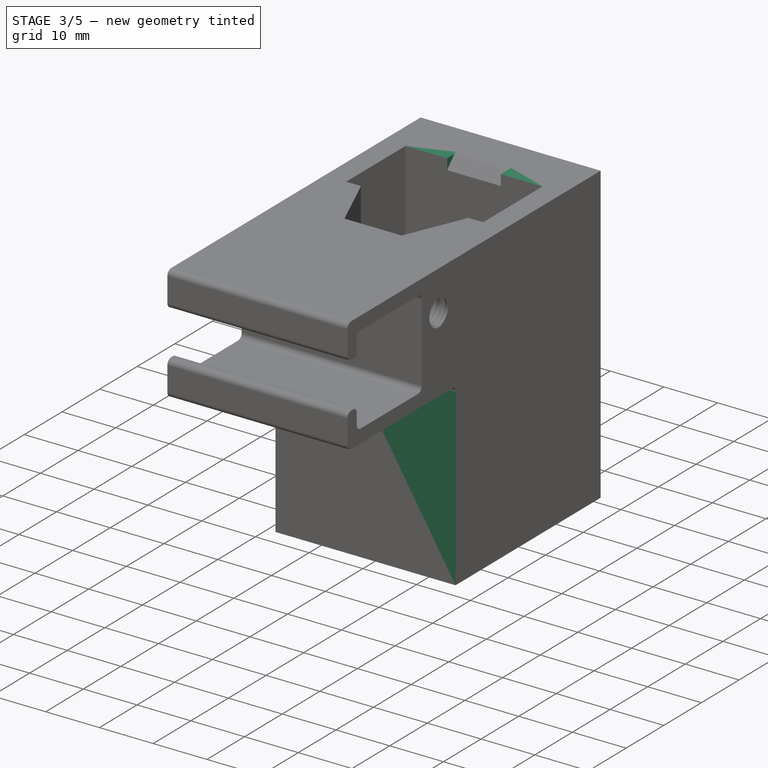
[diagram: stage 3 of 5 — iso view after this stage's code; geometry added in this stage tinted green]
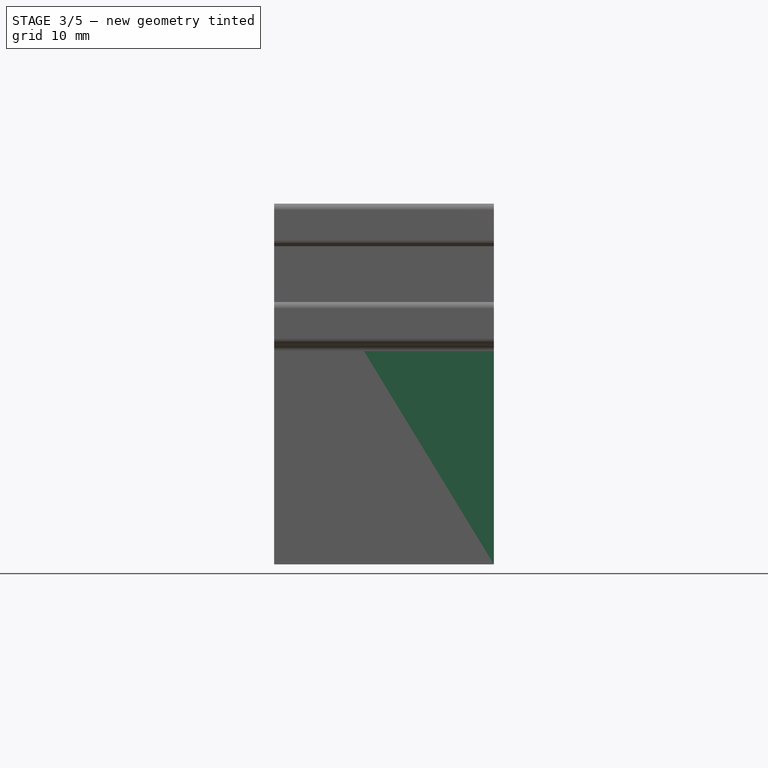
[diagram: stage 3 of 5 — front view after this stage's code; geometry added in this stage tinted green]
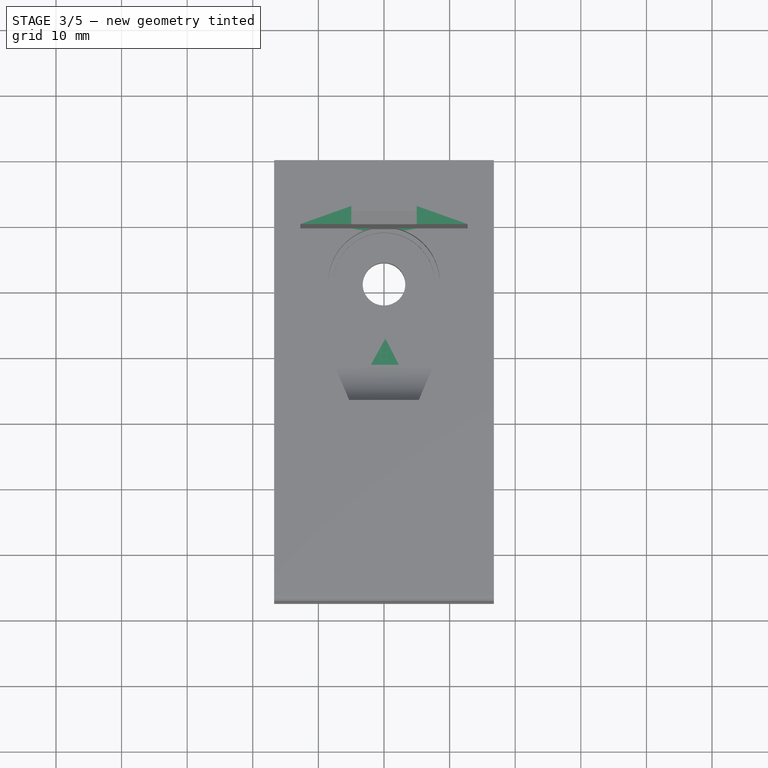
[diagram: stage 3 of 5 — top view after this stage's code; geometry added in this stage tinted green]
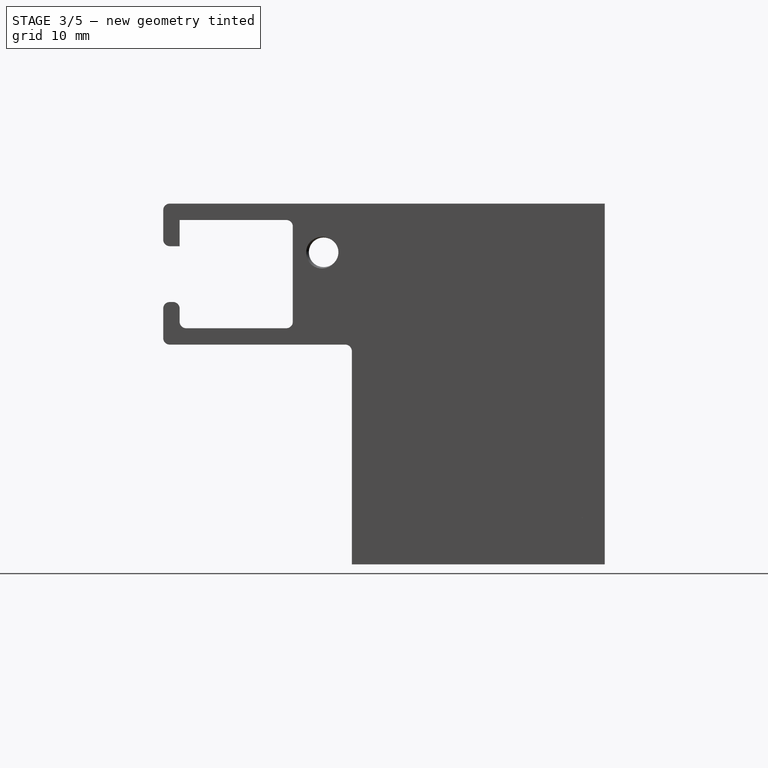
[diagram: stage 3 of 5 — right view after this stage's code; geometry added in this stage tinted green]
FEATURE [Sketcher::SketchObject] Sketch
  ArcFitTolerance = 1e-06
  AttachmentSupport = -> [XY_Plane]
  FullyConstrained = true
  MakeInternals = false
  MapMode = 5
  sketch-geometry (23):
    g0: LineSegment StartX=-12.75 StartY=9.525 StartZ=0 EndX=-5 EndY=9.525 EndZ=0
    g1: LineSegment StartX=-5 StartY=9.525 StartZ=0 EndX=-5 EndY=12.275 EndZ=0
    g2: ArcOfCircle CenterX=-5e-16 CenterY=12.275 CenterZ=0 NormalX=0 NormalY=0 NormalZ=1 AngleXU=0 Radius=5 StartAngle=0 EndAngle=3.14159
    g3: LineSegment StartX=5 StartY=12.275 StartZ=0 EndX=5 EndY=9.525 EndZ=0
    g4: LineSegment StartX=5 StartY=9.525 StartZ=0 EndX=12.75 EndY=9.525 EndZ=0
    g5: LineSegment StartX=12.75 StartY=9.525 StartZ=0 EndX=12.75 EndY=-6.225 EndZ=0
    g6: LineSegment StartX=12.75 StartY=-6.225 StartZ=0 EndX=10 EndY=-6.225 EndZ=0
    g7: LineSegment StartX=10 StartY=-6.225 StartZ=0 EndX=5.32052 EndY=-17.275 EndZ=0
    g8: LineSegment StartX=5.32052 StartY=-17.275 StartZ=0 EndX=-5.32052 EndY=-17.275 EndZ=0
    g9: LineSegment StartX=-5.32052 StartY=-17.275 StartZ=0 EndX=-10 EndY=-6.225 EndZ=0
    g10: LineSegment StartX=-10 StartY=-6.225 StartZ=0 EndX=-12.75 EndY=-6.225 EndZ=0
    g11: LineSegment StartX=-12.75 StartY=-6.225 StartZ=0 EndX=-12.75 EndY=9.525 EndZ=0
    g12: LineSegment [constr] StartX=-5 StartY=9.525 StartZ=0 EndX=5 EndY=9.525 EndZ=0
    g13: LineSegment [constr] StartX=-10 StartY=-6.225 StartZ=0 EndX=10 EndY=-6.225 EndZ=0
    g14: LineSegment [constr] StartX=-6e-16 StartY=17.275 StartZ=0 EndX=-6e-16 EndY=9.525 EndZ=0
    g15: LineSegment [constr] StartX=-6e-16 StartY=17.275 StartZ=0 EndX=6e-16 EndY=-17.275 EndZ=0
    g16: LineSegment StartX=-16.75 StartY=-19.275 StartZ=0 EndX=16.75 EndY=-19.275 EndZ=0
    g17: LineSegment StartX=16.75 StartY=-19.275 StartZ=0 EndX=16.75 EndY=19.275 EndZ=0
    g18: LineSegment StartX=16.75 StartY=19.275 StartZ=0 EndX=-16.75 EndY=19.275 EndZ=0
    g19: LineSegment StartX=-16.75 StartY=19.275 StartZ=0 EndX=-16.75 EndY=-19.275 EndZ=0
    g20: GeomPoint [constr] X=0 Y=0 Z=0
    g21: LineSegment [constr] StartX=-6e-16 StartY=17.275 StartZ=0 EndX=1e-16 EndY=19.275 EndZ=0
    g22: LineSegment [constr] StartX=12.75 StartY=-6.225 StartZ=0 EndX=16.75 EndY=-6.225 EndZ=0
  constraints (60):
    c: Horizontal(g0)
    c: Coincident(g0,g1)
    c: Vertical(g1)
    c: Tangent(g1,g2) = 1.5708
    c: Vertical(g3)
    c: Coincident(g3,g4)
    c: Horizontal(g4)
    c: Coincident(g4,g5)
    c: Vertical(g5)
    c: Coincident(g5,g6)
    c: Horizontal(g6)
    c: Coincident(g6,g7)
    c: Coincident(g7,g8)
    c: Horizontal(g8)
    c: Coincident(g8,g9)
    c: Coincident(g9,g10)
    c: Horizontal(g10)
    c: Coincident(g10,g11)
    c: Coincident(g11,g0)
    c: Vertical(g11)
    c: Coincident(g12,g0)
    c: Coincident(g12,g3)
    c: Horizontal(g12)
    c: Coincident(g13,g9)
    c: Coincident(g13,g6)
    c: Horizontal(g13)
    c: Equal(g7,g9)
    c: Equal(g10,g6)
    c: Equal(g4,g0)
    c: Distance(g11) = 15.75
    c: Distance(g6) = 2.75
    c: Distance(g0) = 7.75
    c: Tangent(g2,g3) = 1.5708
    c: PointOnObject(g14,g2)
    c: Symmetric(g12,g12,g14)
    c: Vertical(g14)
    c: Distance(g14) = 7.75
    c: Distance(g12) = 10
    c: Coincident(g15,g14)
    c: Symmetric(g8,g8,g15)
    c: Symmetric(g14,g15,g-1)
    c: Distance(g15) = 34.55
    c: Distance(g9) = 12
    c: Coincident(g16,g17)
    c: Coincident(g17,g18)
    c: Coincident(g18,g19)
    c: Coincident(g19,g16)
    c: Horizontal(g16)
    c: Horizontal(g18)
    c: Vertical(g17)
    c: Vertical(g19)
    c: Symmetric(g18,g16,g20)
    c: Coincident(g20,g-1)
    c: Coincident(g21,g14)
    c: Symmetric(g18,g18,g21)
    c: Coincident(g22,g5)
    c: PointOnObject(g22,g17)
    c: Horizontal(g22)
    c: Distance(g21) = 2
    c: Distance(g22) = 4
FEATURE [PartDesign::Pad] Pad
  Direction = (0,0,1)
  Length = 55
  Length2 = 10
  Profile = -> Sketch
  ReferenceAxis = -> Sketch [N_Axis]
  Refine = true
  Suppressed = false
  Type = 0
FEATURE [Sketcher::SketchObject] Sketch001
  ArcFitTolerance = 1e-06
  AttachmentSupport = -> [Pad]
  ExternalGeometry = -> [Pad]
  FullyConstrained = true
  MakeInternals = false
  MapMode = 5
  Placement = pos=(0,0,0) rot=(1,0,0;3.14159rad)
  sketch-geometry (9):
    g0: LineSegment StartX=-16.75 StartY=19.275 StartZ=0 EndX=-16.75 EndY=-19.275 EndZ=0
    g1: LineSegment StartX=-16.75 StartY=-19.275 StartZ=0 EndX=16.75 EndY=-19.275 EndZ=0
    g2: LineSegment StartX=16.75 StartY=-19.275 StartZ=0 EndX=16.75 EndY=19.275 EndZ=0
    g3: LineSegment StartX=16.75 StartY=19.275 StartZ=0 EndX=-16.75 EndY=19.275 EndZ=0
    g4: LineSegment [constr] StartX=-5 StartY=-9.525 StartZ=0 EndX=5 EndY=-9.525 EndZ=0
    g5: LineSegment [constr] StartX=-4e-16 StartY=-9.525 StartZ=0 EndX=0 EndY=7.075 EndZ=0
    g6: Circle [constr] CenterX=-2e-16 CenterY=-1.225 CenterZ=0 NormalX=0 NormalY=0 NormalZ=1 AngleXU=0 Radius=8.5
    g7: ArcOfCircle CenterX=-1e-15 CenterY=-1.225 CenterZ=0 NormalX=0 NormalY=0 NormalZ=1 AngleXU=0 Radius=8.5 StartAngle=4.92975 EndAngle=10.7782
    g8: LineSegment StartX=-1.83303 StartY=-9.525 StartZ=0 EndX=1.83303 EndY=-9.525 EndZ=0
  constraints (23):
    c: Coincident(g0,g1)
    c: Coincident(g1,g2)
    c: Coincident(g2,g3)
    c: Coincident(g3,g0)
    c: Vertical(g0)
    c: Vertical(g2)
    c: Horizontal(g1)
    c: Horizontal(g3)
    c: Coincident(g0,g-3)
    c: Coincident(g1,g-4)
    c: Coincident(g4,g-5)
    c: Coincident(g4,g-6)
    c: Symmetric(g4,g4,g5)
    c: PointOnObject(g5,g-2)
    c: Distance(g5) = 16.6
    c: Diameter(g6) = 17
    c: Symmetric(g5,g5,g6)
    c: PointOnObject(g7,g4)
    c: PointOnObject(g7,g4)
    c: Tangent(g7,g6) = -1.5708
    c: Equal(g6,g7)
    c: Coincident(g8,g7)
    c: Coincident(g8,g7)
FEATURE [PartDesign::Pad] Pad001
  BaseFeature = -> Pad
  Direction = (0,0,-1)
  Length = 18
  Length2 = 10
  Offset = 36.5
  Profile = -> Sketch001
  ReferenceAxis = -> Sketch001 [N_Axis]
  Refine = true
  Reversed = true
  Suppressed = false
  Type = 0
FEATURE [Sketcher::SketchObject] Sketch002
  ArcFitTolerance = 1e-06
  AttachmentSupport = -> [Pad001]
  ExternalGeometry = -> [Pad001]
  FullyConstrained = true
  MakeInternals = false
  MapMode = 5
  Placement = pos=(0,0,0) rot=(1,0,0;3.14159rad)
  sketch-geometry (5):
    g0: Circle CenterX=-1e-15 CenterY=-1.225 CenterZ=0 NormalX=0 NormalY=0 NormalZ=1 AngleXU=0 Radius=7.75
    g1: LineSegment StartX=-16.75 StartY=19.275 StartZ=0 EndX=-16.75 EndY=-19.275 EndZ=0
    g2: LineSegment StartX=-16.75 StartY=-19.275 StartZ=0 EndX=16.75 EndY=-19.275 EndZ=0
    g3: LineSegment StartX=16.75 StartY=-19.275 StartZ=0 EndX=16.75 EndY=19.275 EndZ=0
    g4: LineSegment StartX=16.75 StartY=19.275 StartZ=0 EndX=-16.75 EndY=19.275 EndZ=0
  constraints (12):
    c: Coincident(g0,g-3)
    c: Diameter(g0) = 15.5
    c: Coincident(g1,g2)
    c: Coincident(g2,g3)
    c: Coincident(g3,g4)
    c: Coincident(g4,g1)
    c: Vertical(g1)
    c: Vertical(g3)
    c: Horizontal(g2)
    c: Horizontal(g4)
    c: Coincident(g1,g-4)
    c: Coincident(g2,g-5)
FEATURE [PartDesign::Pad] Pad002
  BaseFeature = -> Pad001
  Direction = (0,0,-1)
  Length = 11
  Length2 = 10
  Profile = -> Sketch002
  ReferenceAxis = -> Sketch002 [N_Axis]
  Refine = true
  Reversed = true
  Suppressed = false
  Type = 0
FEATURE [Sketcher::SketchObject] Sketch003
  ArcFitTolerance = 1e-06
  AttachmentSupport = -> [Pad002]
  ExternalGeometry = -> [Pad002]
  FullyConstrained = true
  MakeInternals = false
  MapMode = 5
  Placement = pos=(0,0,0) rot=(1,0,0;3.14159rad)
  sketch-geometry (1):
    g0: Circle CenterX=0 CenterY=-1.225 CenterZ=0 NormalX=0 NormalY=0 NormalZ=1 AngleXU=0 Radius=9
  constraints (2):
    c: Coincident(g0,g-3)
    c: Diameter(g0) = 18
FEATURE [PartDesign::Pocket] Pocket
  BaseFeature = -> Pad002
  Direction = (0,0,1)
  Length = 9
  Length2 = 5
  Profile = -> Sketch003
  ReferenceAxis = -> Sketch003 [N_Axis]
  Refine = true
  Suppressed = false
  Type = 0
FEATURE [PartDesign::Body] Body003  label="-Full001"
  AllowCompound = false
  Group = -> [Sketch016,Pad006,Sketch017,Pad007,Sketch018,Pad008,Sketch019,Pocket006,Sketch020,Pad009,Sketch021,Pad010,Sketch022,Pocket007,Fillet002,Sketch023,Pad011,Sketch024,Pocket008,Chamfer001,Fillet003,DatumPlane003,DatumPlane004,Sketch027,Sketch028,Sketch029,Sketch030,Sketch031,Pocket011,SubtractiveHelix004,SubtractiveHelix005,SubtractiveHelix006,SubtractiveHelix007]
  Origin = -> Origin004
  Tip = -> SubtractiveHelix007
FEATURE [PartDesign::FeatureBase] Clone002
  BaseFeature = -> Body003
  Suppressed = false
FEATURE [PartDesign::FeatureBase] Clone003
  BaseFeature = -> Body003
  Suppressed = false
FEATURE [Sketcher::SketchObject] Sketch025
  ArcFitTolerance = 1e-06
  AttachmentSupport = -> [Clone002]
  ExternalGeometry = -> [Clone002]
  FullyConstrained = true
  MakeInternals = false
  MapMode = 5
  Placement = pos=(0,0,55) rot=(0,0,1;0rad)
  sketch-geometry (4):
    g0: LineSegment StartX=0 StartY=-48.025 StartZ=0 EndX=16.75 EndY=-48.025 EndZ=0
    g1: LineSegment StartX=16.75 StartY=-48.025 StartZ=0 EndX=16.75 EndY=19.275 EndZ=0
    g2: LineSegment StartX=16.75 StartY=19.275 StartZ=0 EndX=0 EndY=19.275 EndZ=0
    g3: LineSegment StartX=0 StartY=19.275 StartZ=0 EndX=0 EndY=-48.025 EndZ=0
  constraints (10):
    c: Coincident(g0,g1)
    c: Coincident(g1,g2)
    c: Coincident(g2,g3)
    c: Coincident(g3,g0)
    c: Horizontal(g0)
    c: Horizontal(g2)
    c: Vertical(g1)
    c: Vertical(g3)
    c: Symmetric(g-4,g-4,g0)
    c: Coincident(g1,g-3)
FEATURE [PartDesign::Pocket] Pocket009
  BaseFeature = -> Clone002
  Direction = (0,0,-1)
  Length = 5
  Length2 = 5
  Profile = -> Sketch025
  ReferenceAxis = -> Sketch025 [N_Axis]
  Refine = true
  Suppressed = false
  Type = 1
FEATURE [PartDesign::Body] Body004  label="-Left001"
  AllowCompound = false
  Group = -> [Clone002,Sketch025,Pocket009]
  Origin = -> Origin005
  Tip = -> Pocket009
FEATURE [Sketcher::SketchObject] Sketch026
  ArcFitTolerance = 1e-06
  AttachmentSupport = -> [Clone003]
  ExternalGeometry = -> [Clone003]
  FullyConstrained = true
  MakeInternals = false
  MapMode = 5
  Placement = pos=(0,0,55) rot=(0,0,1;0rad)
  sketch-geometry (4):
    g0: LineSegment StartX=-16.75 StartY=19.275 StartZ=0 EndX=-16.75 EndY=-48.025 EndZ=0
    g1: LineSegment StartX=-16.75 StartY=-48.025 StartZ=0 EndX=0 EndY=-48.025 EndZ=0
    g2: LineSegment StartX=0 StartY=-48.025 StartZ=0 EndX=0 EndY=19.275 EndZ=0
    g3: LineSegment StartX=0 StartY=19.275 StartZ=0 EndX=-16.75 EndY=19.275 EndZ=0
  constraints (10):
    c: Coincident(g0,g1)
    c: Coincident(g1,g2)
    c: Coincident(g2,g3)
    c: Coincident(g3,g0)
    c: Vertical(g0)
    c: Vertical(g2)
    c: Horizontal(g1)
    c: Horizontal(g3)
    c: Coincident(g0,g-4)
    c: Symmetric(g-3,g-3,g1)
FEATURE [PartDesign::Pocket] Pocket010
  BaseFeature = -> Clone003
  Direction = (0,0,-1)
  Length = 5
  Length2 = 5
  Profile = -> Sketch026
  ReferenceAxis = -> Sketch026 [N_Axis]
  Refine = true
  Suppressed = false
  Type = 1
FEATURE [PartDesign::Body] Body005  label="-Right001"
  AllowCompound = false
  Group = -> [Clone003,Sketch026,Pocket010]
  Origin = -> Origin006
  Tip = -> Pocket010
FEATURE [App::Part] Part001  label="Middle"
  Group = -> [Body003,Body005,Body004]
  Origin = -> Origin007
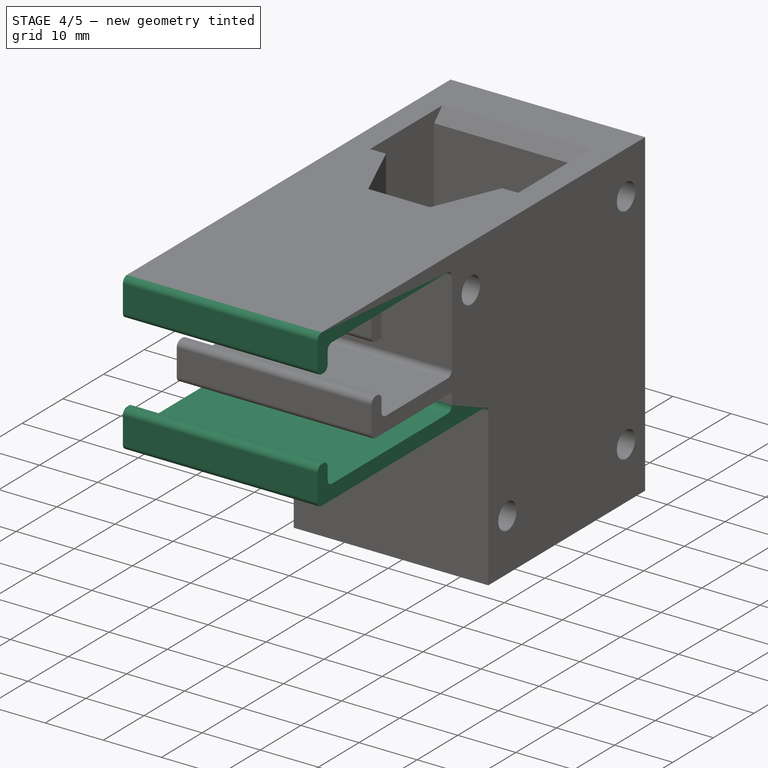
[diagram: stage 4 of 5 — iso view after this stage's code; geometry added in this stage tinted green]
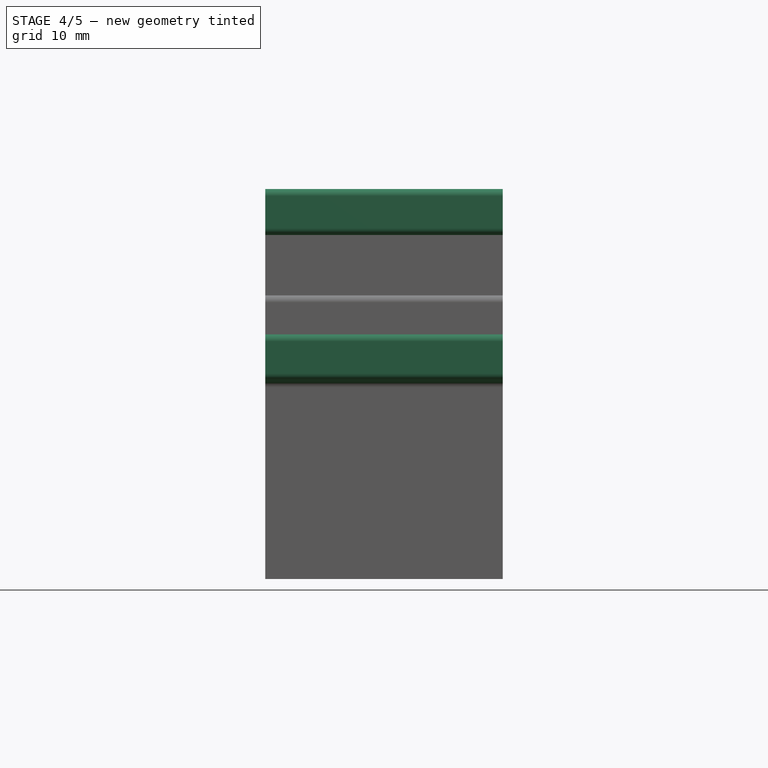
[diagram: stage 4 of 5 — front view after this stage's code; geometry added in this stage tinted green]
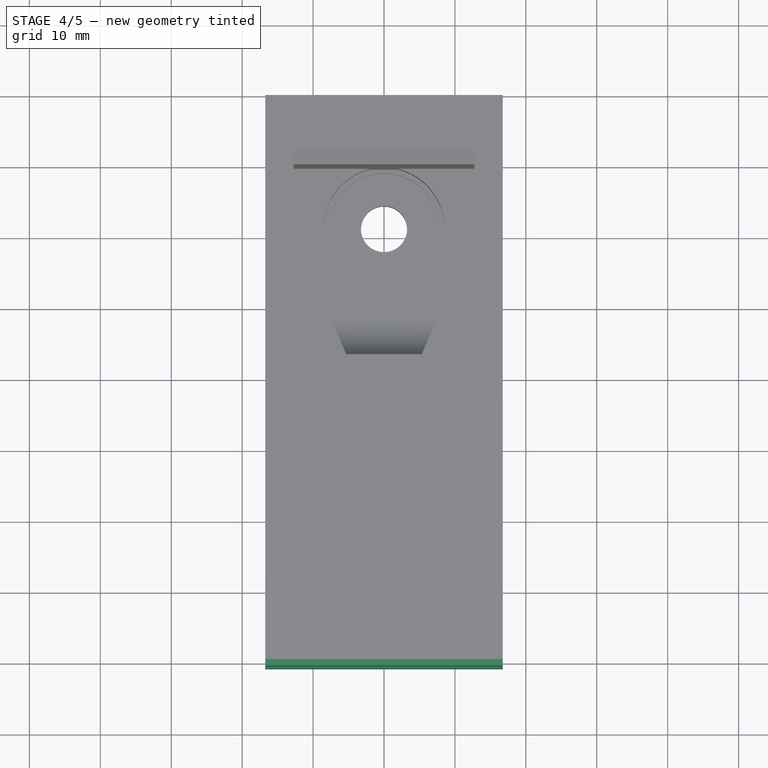
[diagram: stage 4 of 5 — top view after this stage's code; geometry added in this stage tinted green]
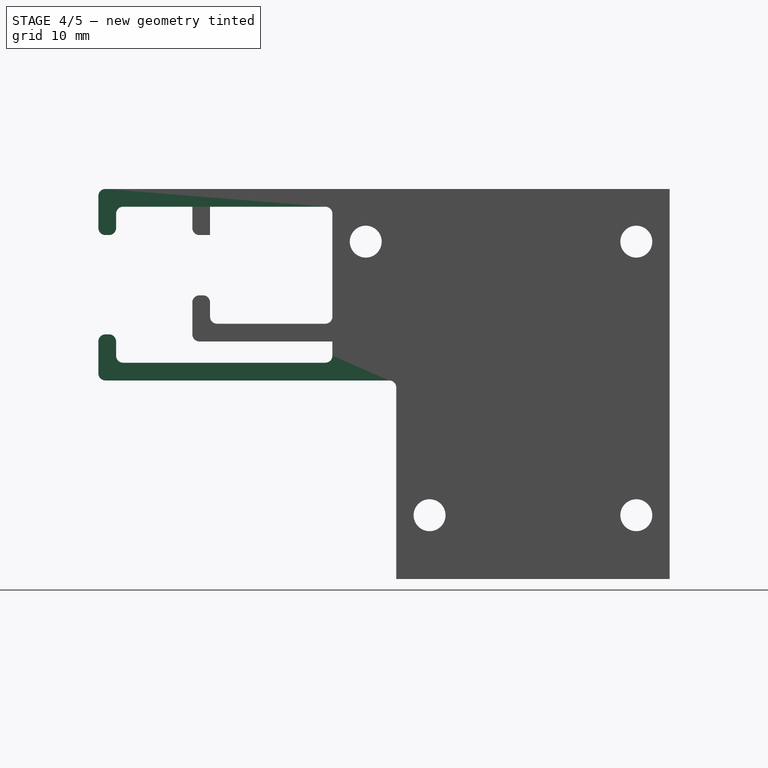
[diagram: stage 4 of 5 — right view after this stage's code; geometry added in this stage tinted green]
FEATURE [Sketcher::SketchObject] Sketch004
  ArcFitTolerance = 1e-06
  AttachmentSupport = -> [Pocket]
  ExternalGeometry = -> [Pocket]
  FullyConstrained = true
  MakeInternals = false
  MapMode = 5
  Placement = pos=(0,0,0) rot=(1,0,0;3.14159rad)
  sketch-geometry (5):
    g0: Circle CenterX=0 CenterY=-1.225 CenterZ=0 NormalX=0 NormalY=0 NormalZ=1 AngleXU=0 Radius=3.25
    g1: LineSegment StartX=-16.75 StartY=19.275 StartZ=0 EndX=-16.75 EndY=-19.275 EndZ=0
    g2: LineSegment StartX=-16.75 StartY=-19.275 StartZ=0 EndX=16.75 EndY=-19.275 EndZ=0
    g3: LineSegment StartX=16.75 StartY=-19.275 StartZ=0 EndX=16.75 EndY=19.275 EndZ=0
    g4: LineSegment StartX=16.75 StartY=19.275 StartZ=0 EndX=-16.75 EndY=19.275 EndZ=0
  constraints (12):
    c: Coincident(g0,g-5)
    c: Coincident(g1,g2)
    c: Coincident(g2,g3)
    c: Coincident(g3,g4)
    c: Coincident(g4,g1)
    c: Vertical(g1)
    c: Vertical(g3)
    c: Horizontal(g2)
    c: Horizontal(g4)
    c: Coincident(g1,g-3)
    c: Coincident(g2,g-4)
    c: Diameter(g0) = 6.5
FEATURE [PartDesign::Pad] Pad003
  BaseFeature = -> Pocket
  Direction = (0,0,-1)
  Length = 6
  Length2 = 10
  Profile = -> Sketch004
  ReferenceAxis = -> Sketch004 [N_Axis]
  Refine = true
  Reversed = true
  Suppressed = false
  Type = 0
FEATURE [Sketcher::SketchObject] Sketch005
  ArcFitTolerance = 1e-06
  AttachmentSupport = -> [Pad003]
  ExternalGeometry = -> [Pad003]
  FullyConstrained = true
  MakeInternals = false
  MapMode = 5
  Placement = pos=(16.75,0,0) rot=(0.57735,0.57735,0.57735;2.0944rad)
  sketch-geometry (4):
    g0: LineSegment StartX=-19.275 StartY=55 StartZ=0 EndX=-61.275 EndY=55 EndZ=0
    g1: LineSegment StartX=-61.275 StartY=55 StartZ=0 EndX=-61.275 EndY=28 EndZ=0
    g2: LineSegment StartX=-61.275 StartY=28 StartZ=0 EndX=-19.275 EndY=28 EndZ=0
    g3: LineSegment StartX=-19.275 StartY=28 StartZ=0 EndX=-19.275 EndY=55 EndZ=0
  constraints (11):
    c: Coincident(g0,g1)
    c: Coincident(g1,g2)
    c: Coincident(g2,g3)
    c: Coincident(g3,g0)
    c: Horizontal(g0)
    c: Horizontal(g2)
    c: Vertical(g1)
    c: Vertical(g3)
    c: Coincident(g0,g-3)
    c: Distance(g0) = 42
    c: Distance(g1) = 27
FEATURE [PartDesign::Pad] Pad004
  BaseFeature = -> Pad003
  Direction = (1,0,0)
  Length = 10
  Length2 = 10
  Profile = -> Sketch005
  ReferenceAxis = -> Sketch005 [N_Axis]
  Refine = true
  Suppressed = false
  Type = 3
  UpToFace = -> Pad003 [Face26]
FEATURE [Sketcher::SketchObject] Sketch006
  ArcFitTolerance = 1e-06
  AttachmentSupport = -> [Pad004]
  ExternalGeometry = -> [Pad004]
  FullyConstrained = true
  MakeInternals = false
  MapMode = 5
  Placement = pos=(16.75,0,0) rot=(0.57735,0.57735,0.57735;2.0944rad)
  sketch-geometry (17):
    g0: LineSegment StartX=-61.275 StartY=48.5 StartZ=0 EndX=-61.275 EndY=34.5 EndZ=0
    g1: LineSegment StartX=-61.275 StartY=34.5 StartZ=0 EndX=-58.775 EndY=34.5 EndZ=0
    g2: LineSegment StartX=-58.775 StartY=34.5 StartZ=0 EndX=-58.775 EndY=30.5 EndZ=0
    g3: LineSegment StartX=-58.775 StartY=30.5 StartZ=0 EndX=-28.275 EndY=30.5 EndZ=0
    g4: LineSegment StartX=-28.275 StartY=30.5 StartZ=0 EndX=-28.275 EndY=52.5 EndZ=0
    g5: LineSegment StartX=-28.275 StartY=52.5 StartZ=0 EndX=-58.775 EndY=52.5 EndZ=0
    g6: LineSegment StartX=-58.775 StartY=52.5 StartZ=0 EndX=-58.775 EndY=48.5 EndZ=0
    g7: LineSegment StartX=-58.775 StartY=48.5 StartZ=0 EndX=-61.275 EndY=48.5 EndZ=0
    g8: LineSegment [constr] StartX=-61.275 StartY=55 StartZ=0 EndX=-61.275 EndY=52.5 EndZ=0
    g9: LineSegment [constr] StartX=-61.275 StartY=52.5 StartZ=0 EndX=-58.775 EndY=52.5 EndZ=0
    g10: LineSegment [constr] StartX=-58.775 StartY=52.5 StartZ=0 EndX=-58.775 EndY=55 EndZ=0
    g11: LineSegment [constr] StartX=-58.775 StartY=55 StartZ=0 EndX=-61.275 EndY=55 EndZ=0
    g12: LineSegment [constr] StartX=-61.275 StartY=28 StartZ=0 EndX=-58.775 EndY=28 EndZ=0
    g13: LineSegment [constr] StartX=-58.775 StartY=28 StartZ=0 EndX=-58.775 EndY=30.5 EndZ=0
    g14: LineSegment [constr] StartX=-58.775 StartY=30.5 StartZ=0 EndX=-61.275 EndY=30.5 EndZ=0
    g15: LineSegment [constr] StartX=-61.275 StartY=30.5 StartZ=0 EndX=-61.275 EndY=28 EndZ=0
    g16: LineSegment [constr] StartX=-58.775 StartY=48.5 StartZ=0 EndX=-58.775 EndY=34.5 EndZ=0
  constraints (46):
    c: PointOnObject(g0,g-3)
    c: PointOnObject(g0,g-3)
    c: Coincident(g0,g1)
    c: Horizontal(g1)
    c: Coincident(g1,g2)
    c: Vertical(g2)
    c: Coincident(g2,g3)
    c: Horizontal(g3)
    c: Coincident(g3,g4)
    c: Vertical(g4)
    c: Coincident(g4,g5)
    c: Horizontal(g5)
    c: Coincident(g5,g6)
    c: Vertical(g6)
    c: Coincident(g6,g7)
    c: Coincident(g7,g0)
    c: Horizontal(g7)
    c: Coincident(g8,g9)
    c: Coincident(g9,g10)
    c: Coincident(g10,g11)
    c: Coincident(g11,g8)
    c: Vertical(g8)
    c: Vertical(g10)
    c: Horizontal(g9)
    c: Horizontal(g11)
    c: Coincident(g8,g-3)
    c: Coincident(g9,g5)
    c: Coincident(g12,g13)
    c: Coincident(g13,g14)
    c: Coincident(g14,g15)
    c: Coincident(g15,g12)
    c: Horizontal(g12)
    c: Horizontal(g14)
    c: Vertical(g13)
    c: Vertical(g15)
    c: Coincident(g12,g-3)
    c: Coincident(g13,g2)
    c: Coincident(g16,g6)
    c: Coincident(g16,g1)
    c: Vertical(g16)
    c: Equal(g10,g13)
    c: Distance(g10) = 2.5
    c: Distance(g9) = 2.5
    c: Distance(g6) = 4
    c: Equal(g6,g2)
    c: Distance(g5) = 30.5
FEATURE [PartDesign::Pocket] Pocket001
  BaseFeature = -> Pad004
  Direction = (-1,0,0)
  Length = 5
  Length2 = 5
  Profile = -> Sketch006
  ReferenceAxis = -> Sketch006 [N_Axis]
  Refine = true
  Suppressed = false
  Type = 1
FEATURE [PartDesign::Fillet] Fillet
  Base = -> Pocket001 [Edge56,Edge55,Edge54,Edge53,Edge10,Edge39,Edge60,Edge40,Edge59,Edge58,Edge57]
  BaseFeature = -> Pocket001
  Radius = 1
  Refine = true
  SupportTransform = false
  Suppressed = false
  UseAllEdges = false
FEATURE [Sketcher::SketchObject] Sketch007
  ArcFitTolerance = 1e-06
  AttachmentSupport = -> [Fillet]
  ExternalGeometry = -> [Fillet]
  FullyConstrained = true
  MakeInternals = false
  MapMode = 5
  Placement = pos=(0,0,18) rot=(0,0,1;0rad)
  sketch-geometry (4):
    g0: LineSegment StartX=-5 StartY=9.525 StartZ=0 EndX=5 EndY=9.525 EndZ=0
    g1: LineSegment StartX=5 StartY=9.525 StartZ=0 EndX=5 EndY=19.275 EndZ=0
    g2: LineSegment StartX=5 StartY=19.275 StartZ=0 EndX=-5 EndY=19.275 EndZ=0
    g3: LineSegment StartX=-5 StartY=19.275 StartZ=0 EndX=-5 EndY=9.525 EndZ=0
  constraints (10):
    c: Coincident(g0,g1)
    c: Coincident(g1,g2)
    c: Coincident(g2,g3)
    c: Coincident(g3,g0)
    c: Horizontal(g2)
    c: Vertical(g1)
    c: Vertical(g3)
    c: Coincident(g0,g-3)
    c: PointOnObject(g1,g-5)
    c: Coincident(g0,g-4)
FEATURE [PartDesign::Pad] Pad005
  BaseFeature = -> Fillet
  Direction = (0,0,1)
  Length = 10
  Length2 = 10
  Profile = -> Sketch007
  ReferenceAxis = -> Sketch007 [N_Axis]
  Refine = true
  Suppressed = false
  Type = 3
  UpToFace = -> Fillet [Face6]
FEATURE [Sketcher::SketchObject] Sketch008
  ArcFitTolerance = 1e-06
  AttachmentSupport = -> [Pad005]
  ExternalGeometry = -> [Pad005]
  FullyConstrained = true
  MakeInternals = false
  MapMode = 5
  Placement = pos=(16.75,0,0) rot=(0.57735,0.57735,0.57735;2.0944rad)
  sketch-geometry (42):
    g0: Circle CenterX=14.575 CenterY=47.5729 CenterZ=0 NormalX=0 NormalY=0 NormalZ=1 AngleXU=0 Radius=0.5
    g1: LineSegment [constr] StartX=14.575 StartY=53 StartZ=0 EndX=9.875 EndY=50.2865 EndZ=0
    g2: LineSegment [constr] StartX=9.875 StartY=50.2865 StartZ=0 EndX=9.875 EndY=44.8594 EndZ=0
    g3: LineSegment [constr] StartX=9.875 StartY=44.8594 StartZ=0 EndX=14.575 EndY=42.1458 EndZ=0
    g4: LineSegment [constr] StartX=14.575 StartY=42.1458 StartZ=0 EndX=19.275 EndY=44.8594 EndZ=0
    g5: LineSegment [constr] StartX=19.275 StartY=44.8594 StartZ=0 EndX=19.275 EndY=50.2865 EndZ=0
    g6: LineSegment [constr] StartX=19.275 StartY=50.2865 StartZ=0 EndX=14.575 EndY=53 EndZ=0
    g7: Circle [constr] CenterX=14.575 CenterY=47.5729 CenterZ=0 NormalX=0 NormalY=0 NormalZ=1 AngleXU=0 Radius=5.42709
    g8: LineSegment [constr] StartX=9.875 StartY=44.8594 StartZ=0 EndX=19.275 EndY=44.8594 EndZ=0
    g9: Circle CenterX=14.575 CenterY=9 CenterZ=0 NormalX=0 NormalY=0 NormalZ=1 AngleXU=0 Radius=0.5
    g10: LineSegment [constr] StartX=14.575 StartY=14.4271 StartZ=0 EndX=9.875 EndY=11.7135 EndZ=0
    g11: LineSegment [constr] StartX=9.875 StartY=11.7135 StartZ=0 EndX=9.875 EndY=6.28645 EndZ=0
    g12: LineSegment [constr] StartX=9.875 StartY=6.28645 StartZ=0 EndX=14.575 EndY=3.57291 EndZ=0
    g13: LineSegment [constr] StartX=14.575 StartY=3.57291 StartZ=0 EndX=19.275 EndY=6.28645 EndZ=0
    g14: LineSegment [constr] StartX=19.275 StartY=6.28645 StartZ=0 EndX=19.275 EndY=11.7135 EndZ=0
    g15: LineSegment [constr] StartX=19.275 StartY=11.7135 StartZ=0 EndX=14.575 EndY=14.4271 EndZ=0
    g16: Circle [constr] CenterX=14.575 CenterY=9 CenterZ=0 NormalX=0 NormalY=0 NormalZ=1 AngleXU=0 Radius=5.42709
    g17: LineSegment [constr] StartX=9.875 StartY=6.28645 StartZ=0 EndX=19.275 EndY=6.28645 EndZ=0
    g18: Circle CenterX=-14.575 CenterY=9 CenterZ=0 NormalX=0 NormalY=0 NormalZ=1 AngleXU=0 Radius=0.5
    g19: LineSegment [constr] StartX=-14.575 StartY=14.4271 StartZ=0 EndX=-19.275 EndY=11.7135 EndZ=0
    g20: LineSegment [constr] StartX=-19.275 StartY=11.7135 StartZ=0 EndX=-19.275 EndY=6.28645 EndZ=0
    g21: LineSegment [constr] StartX=-19.275 StartY=6.28645 StartZ=0 EndX=-14.575 EndY=3.57291 EndZ=0
    g22: LineSegment [constr] StartX=-14.575 StartY=3.57291 StartZ=0 EndX=-9.875 EndY=6.28645 EndZ=0
    g23: LineSegment [constr] StartX=-9.875 StartY=6.28645 StartZ=0 EndX=-9.875 EndY=11.7135 EndZ=0
    g24: LineSegment [constr] StartX=-9.875 StartY=11.7135 StartZ=0 EndX=-14.575 EndY=14.4271 EndZ=0
    g25: Circle [constr] CenterX=-14.575 CenterY=9 CenterZ=0 NormalX=0 NormalY=0 NormalZ=1 AngleXU=0 Radius=5.42709
    g26: LineSegment [constr] StartX=-19.275 StartY=6.28645 StartZ=0 EndX=-9.875 EndY=6.28645 EndZ=0
    g27: Circle CenterX=-23.575 CenterY=47.5729 CenterZ=0 NormalX=0 NormalY=0 NormalZ=1 AngleXU=0 Radius=0.5
    g28: LineSegment [constr] StartX=-23.575 StartY=53 StartZ=0 EndX=-28.275 EndY=50.2865 EndZ=0
    g29: LineSegment [constr] StartX=-28.275 StartY=50.2865 StartZ=0 EndX=-28.275 EndY=44.8594 EndZ=0
    g30: LineSegment [constr] StartX=-28.275 StartY=44.8594 StartZ=0 EndX=-23.575 EndY=42.1458 EndZ=0
    g31: LineSegment [constr] StartX=-23.575 StartY=42.1458 StartZ=0 EndX=-18.875 EndY=44.8594 EndZ=0
    g32: LineSegment [constr] StartX=-18.875 StartY=44.8594 StartZ=0 EndX=-18.875 EndY=50.2865 EndZ=0
    g33: LineSegment [constr] StartX=-18.875 StartY=50.2865 StartZ=0 EndX=-23.575 EndY=53 EndZ=0
    g34: Circle [constr] CenterX=-23.575 CenterY=47.5729 CenterZ=0 NormalX=0 NormalY=0 NormalZ=1 AngleXU=0 Radius=5.42709
    g35: LineSegment [constr] StartX=-28.275 StartY=44.8594 StartZ=0 EndX=-18.875 EndY=44.8594 EndZ=0
    g36: LineSegment [constr] StartX=-23.575 StartY=53 StartZ=0 EndX=-23.575 EndY=55 EndZ=0
    g37: LineSegment [constr] StartX=-23.575 StartY=55 StartZ=0 EndX=-17.275 EndY=55 EndZ=0
    g38: LineSegment [constr] StartX=14.575 StartY=53 StartZ=0 EndX=14.575 EndY=55 EndZ=0
    g39: LineSegment [constr] StartX=14.575 StartY=55 StartZ=0 EndX=9.525 EndY=55 EndZ=0
    g40: LineSegment [constr] StartX=-6.525 StartY=9 StartZ=0 EndX=-19.275 EndY=9 EndZ=0
    g41: LineSegment [constr] StartX=8.975 StartY=9 StartZ=0 EndX=19.275 EndY=9 EndZ=0
  constraints (100):
    c: Coincident(g1,g2)
    c: Coincident(g2,g3)
    c: Coincident(g3,g4)
    c: Coincident(g4,g5)
    c: Coincident(g5,g6)
    c: Coincident(g6,g1)
    c: Equal(g1, g2-g6) x5
    c: PointOnObject(g1,g7)
    c: PointOnObject(g2,g7)
    c: PointOnObject(g3,g7)
    c: PointOnObject(g4,g7)
    c: PointOnObject(g5,g7)
    c: PointOnObject(g6,g7)
    c: Coincident(g7,g0)
    c: Coincident(g8,g2)
    c: Coincident(g8,g4)
    c: Horizontal(g8)
    c: Diameter(g0) = 1
    c: Distance(g8) = 9.4
    c: Coincident(g10,g11)
    c: Coincident(g11,g12)
    c: Coincident(g12,g13)
    c: Coincident(g13,g14)
    c: Coincident(g14,g15)
    c: Coincident(g15,g10)
    c: Equal(g10, g11-g15) x5
    c: PointOnObject(g10,g16)
    c: PointOnObject(g11,g16)
    c: PointOnObject(g12,g16)
    c: PointOnObject(g13,g16)
    c: PointOnObject(g14,g16)
    c: PointOnObject(g15,g16)
    c: Coincident(g16,g9)
    c: Coincident(g17,g11)
    c: Coincident(g17,g13)
    c: Horizontal(g17)
    c: Diameter(g9) = 1
    c: Distance(g17) = 9.4
    c: Coincident(g19,g20)
    c: Coincident(g20,g21)
    c: Coincident(g21,g22)
    c: Coincident(g22,g23)
    c: Coincident(g23,g24)
    c: Coincident(g24,g19)
    c: Equal(g19, g20-g24) x5
    c: PointOnObject(g19,g25)
    c: PointOnObject(g20,g25)
    c: PointOnObject(g21,g25)
    c: PointOnObject(g22,g25)
    c: PointOnObject(g23,g25)
    c: PointOnObject(g24,g25)
    c: Coincident(g25,g18)
    c: Coincident(g26,g20)
    c: Coincident(g26,g22)
    c: Horizontal(g26)
    c: Distance(g26) = 9.4
    c: Coincident(g28,g29)
    c: Coincident(g29,g30)
    c: Coincident(g30,g31)
    c: Coincident(g31,g32)
    c: Coincident(g32,g33)
    c: Coincident(g33,g28)
    c: Equal(g28, g29-g33) x5
    c: PointOnObject(g28,g34)
    c: PointOnObject(g29,g34)
    c: PointOnObject(g30,g34)
    c: PointOnObject(g31,g34)
    c: PointOnObject(g32,g34)
    c: PointOnObject(g33,g34)
    c: Coincident(g34,g27)
    c: Coincident(g35,g29)
    c: Coincident(g35,g31)
    c: Horizontal(g35)
    c: Diameter(g27) = 1
    c: Distance(g35) = 9.4
    c: PointOnObject(g29,g-8)
    c: PointOnObject(g4,g-3)
    c: Coincident(g28,g36)
    c: Vertical(g36)
    c: Coincident(g36,g37)
    c: Coincident(g37,g-5)
    c: Horizontal(g37)
    c: Coincident(g1,g38)
    c: Vertical(g38)
    c: Coincident(g38,g39)
    c: Coincident(g39,g-4)
    c: Horizontal(g39)
    c: Equal(g36,g38)
    c: Distance(g36) = 2
    c: Coincident(g40,g-6)
    c: PointOnObject(g40,g-7)
    c: Horizontal(g40)
    c: Coincident(g41,g-6)
    c: PointOnObject(g41,g14)
    c: Horizontal(g41)
    c: PointOnObject(g18,g40)
    c: PointOnObject(g9,g41)
    c: PointOnObject(g20,g-7)
    c: PointOnObject(g13,g-3)
    c: Equal(g18,g9)
FEATURE [PartDesign::Pocket] Pocket002
  BaseFeature = -> Pad005
  Direction = (-1,0,0)
  Length = 5
  Length2 = 5
  Profile = -> Sketch008
  ReferenceAxis = -> Sketch008 [N_Axis]
  Refine = true
  Suppressed = false
  Type = 1
FEATURE [PartDesign::Chamfer] Chamfer
  Angle = 45
  Base = -> Pocket002 [Edge66]
  BaseFeature = -> Pocket002
  ChamferType = 0
  FlipDirection = false
  Refine = true
  Size = 2
  Size2 = 1
  SupportTransform = false
  Suppressed = false
  UseAllEdges = false
FEATURE [PartDesign::Fillet] Fillet001
  Base = -> Chamfer [Edge28]
  BaseFeature = -> Chamfer
  Radius = 6
  Refine = true
  SupportTransform = false
  Suppressed = false
  UseAllEdges = false
FEATURE [PartDesign::Plane] DatumPlane
  AttachmentOffset = pos=(0,0,0) rot=(0,1,0;1.5708rad)
  AttachmentSupport = -> [Fillet001]
  Length = 126.271
  MapMode = 11
  Placement = pos=(-16.75,-23.575,47.5729) rot=(0,0,1;3.14159rad)
  ResizeMode = 0
  Width = 105.496
FEATURE [PartDesign::Plane] DatumPlane002
  AttachmentOffset = pos=(0,0,0) rot=(0,1,0;1.5708rad)
  AttachmentSupport = -> [Fillet001]
  Length = 126.271
  MapMode = 11
  Placement = pos=(-16.75,14.575,9) rot=(0,0,1;3.14159rad)
  ResizeMode = 0
  Width = 105.496
FEATURE [Sketcher::SketchObject] Sketch011
  ArcFitTolerance = 1e-06
  AttachmentSupport = -> [DatumPlane]
  ExternalGeometry = -> [Fillet001]
  FullyConstrained = true
  MakeInternals = false
  MapMode = 5
  Placement = pos=(-16.75,-23.575,47.5729) rot=(0,0,1;3.14159rad)
  sketch-geometry (13):
    g0: LineSegment [constr] StartX=0 StartY=-38.15 StartZ=0 EndX=1.2 EndY=-38.15 EndZ=0
    g1: LineSegment [constr] StartX=1.2 StartY=-38.15 StartZ=0 EndX=1.2 EndY=-35.9 EndZ=0
    g2: LineSegment StartX=1.2 StartY=-35.9 StartZ=0 EndX=2.3 EndY=-35.9 EndZ=0
    g3: LineSegment StartX=2.3 StartY=-35.9 StartZ=0 EndX=1.9 EndY=-35.5 EndZ=0
    g4: LineSegment StartX=1.9 StartY=-35.5 StartZ=0 EndX=1.6 EndY=-35.5 EndZ=0
    g5: LineSegment StartX=1.6 StartY=-35.5 StartZ=0 EndX=1.2 EndY=-35.9 EndZ=0
    g6: LineSegment [constr] StartX=2.3 StartY=-35.9 StartZ=0 EndX=2.3 EndY=-38.15 EndZ=0
    g7: LineSegment [constr] StartX=2.3 StartY=-38.15 StartZ=0 EndX=1.2 EndY=-38.15 EndZ=0
    g8: LineSegment [constr] StartX=1.6 StartY=-35.5 StartZ=0 EndX=1.6 EndY=-38.15 EndZ=0
    g9: LineSegment [constr] StartX=1.9 StartY=-35.5 StartZ=0 EndX=1.9 EndY=-35.9 EndZ=0
    g10: LineSegment [constr] StartX=1.9 StartY=-35.9 StartZ=0 EndX=2.3 EndY=-35.9 EndZ=0
    g11: LineSegment [constr] StartX=2.3 StartY=-35.9 StartZ=0 EndX=2.3 EndY=-35.5 EndZ=0
    g12: LineSegment [constr] StartX=2.3 StartY=-35.5 StartZ=0 EndX=1.9 EndY=-35.5 EndZ=0
  constraints (35):
    c: Distance(g0) = 1.2
    c: Symmetric(g-3,g-3,g0)
    c: Horizontal(g0)
    c: Coincident(g1,g0)
    c: Vertical(g1)
    c: Coincident(g1,g2)
    c: Horizontal(g2)
    c: Coincident(g2,g3)
    c: Coincident(g3,g4)
    c: Horizontal(g4)
    c: Coincident(g4,g5)
    c: Coincident(g5,g2)
    c: Coincident(g6,g2)
    c: Vertical(g6)
    c: Coincident(g7,g6)
    c: Coincident(g7,g0)
    c: Coincident(g8,g4)
    c: PointOnObject(g8,g7)
    c: Vertical(g8)
    c: Horizontal(g7)
    c: Coincident(g9,g10)
    c: Coincident(g10,g11)
    c: Coincident(g11,g12)
    c: Coincident(g12,g9)
    c: Vertical(g9)
    c: Vertical(g11)
    c: Horizontal(g10)
    c: Horizontal(g12)
    c: Coincident(g9,g3)
    c: Coincident(g10,g2)
    c: Equal(g12,g11)
    c: DistanceY(g11,g11) = 0.4
    c: DistanceY(g8,g8) = 2.65
    c: DistanceX(g4,g4) = 0.3
    c: Equal(g3,g5)
FEATURE [Sketcher::SketchObject] Sketch012
  ArcFitTolerance = 1e-06
  AttachmentSupport = -> [DatumPlane]
  ExternalGeometry = -> [Fillet001,Sketch011]
  FullyConstrained = true
  MakeInternals = false
  MapMode = 5
  Placement = pos=(-16.75,-23.575,47.5729) rot=(0,0,1;3.14159rad)
  sketch-geometry (14):
    g0: LineSegment [constr] StartX=0 StartY=-38.15 StartZ=0 EndX=1.2 EndY=-38.15 EndZ=0
    g1: LineSegment [constr] StartX=1.2 StartY=-38.15 StartZ=0 EndX=1.2 EndY=-35.9 EndZ=0
    g2: LineSegment [constr] StartX=1.2 StartY=-35.9 StartZ=0 EndX=0 EndY=-35.9 EndZ=0
    g3: LineSegment [constr] StartX=0 StartY=-35.9 StartZ=0 EndX=0 EndY=-38.15 EndZ=0
    g4: LineSegment [constr] StartX=0 StartY=0 StartZ=0 EndX=1.2 EndY=0 EndZ=0
    g5: LineSegment [constr] StartX=1.2 StartY=0 StartZ=0 EndX=1.2 EndY=2.25 EndZ=0
    g6: LineSegment [constr] StartX=1.2 StartY=2.25 StartZ=0 EndX=0 EndY=2.25 EndZ=0
    g7: LineSegment [constr] StartX=0 StartY=2.25 StartZ=0 EndX=0 EndY=0 EndZ=0
    g8: LineSegment StartX=1.2 StartY=2.25 StartZ=0 EndX=2.3 EndY=2.25 EndZ=0
    g9: LineSegment StartX=2.3 StartY=2.25 StartZ=0 EndX=1.9 EndY=2.65 EndZ=0
    g10: LineSegment StartX=1.9 StartY=2.65 StartZ=0 EndX=1.6 EndY=2.65 EndZ=0
    g11: LineSegment StartX=1.6 StartY=2.65 StartZ=0 EndX=1.2 EndY=2.25 EndZ=0
    g12: LineSegment [constr] StartX=1.9 StartY=-35.5 StartZ=0 EndX=1.9 EndY=2.65 EndZ=0
    g13: LineSegment [constr] StartX=1.6 StartY=2.65 StartZ=0 EndX=1.6 EndY=2.25 EndZ=0
  constraints (37):
    c: Coincident(g0,g1)
    c: Coincident(g1,g2)
    c: Coincident(g2,g3)
    c: Coincident(g3,g0)
    c: Horizontal(g0)
    c: Horizontal(g2)
    c: Vertical(g1)
    c: Vertical(g3)
    c: Symmetric(g-5,g-5,g0)
    c: Coincident(g4,g5)
    c: Coincident(g5,g6)
    c: Coincident(g6,g7)
    c: Coincident(g7,g4)
    c: Horizontal(g4)
    c: Horizontal(g6)
    c: Vertical(g5)
    c: Vertical(g7)
    c: Coincident(g4,g-1)
    c: Equal(g4,g0)
    c: Equal(g1,g5)
    c: Coincident(g5,g8)
    c: Horizontal(g8)
    c: Coincident(g8,g9)
    c: Coincident(g9,g10)
    c: Coincident(g10,g11)
    c: Coincident(g11,g8)
    c: Horizontal(g10)
    c: Equal(g8,g-4)
    c: Coincident(g-4,g1)
    c: Equal(g10,g-6)
    c: Coincident(g12,g-6)
    c: Coincident(g12,g9)
    c: Vertical(g12)
    c: Coincident(g13,g10)
    c: PointOnObject(g13,g8)
    c: Vertical(g13)
    c: DistanceY(g13,g13) = 0.4
FEATURE [Sketcher::SketchObject] Sketch013
  ArcFitTolerance = 1e-06
  AttachmentSupport = -> [DatumPlane002]
  ExternalGeometry = -> [Fillet001,Sketch011]
  FullyConstrained = true
  MakeInternals = false
  MapMode = 5
  Placement = pos=(-16.75,14.575,9) rot=(0,0,1;3.14159rad)
  sketch-geometry (4):
    g0: LineSegment StartX=1.2 StartY=2.25 StartZ=0 EndX=2.3 EndY=2.25 EndZ=0
    g1: LineSegment StartX=2.3 StartY=2.25 StartZ=0 EndX=1.9 EndY=2.65 EndZ=0
    g2: LineSegment StartX=1.9 StartY=2.65 StartZ=0 EndX=1.6 EndY=2.65 EndZ=0
    g3: LineSegment StartX=1.6 StartY=2.65 StartZ=0 EndX=1.2 EndY=2.25 EndZ=0
  constraints (8):
    c: Coincident(g-4,g0)
    c: Coincident(g0,g-4)
    c: Coincident(g0,g1)
    c: Coincident(g1,g-5)
    c: Coincident(g1,g2)
    c: Coincident(g2,g-5)
    c: Coincident(g2,g3)
    c: Coincident(g3,g0)
FEATURE [Sketcher::SketchObject] Sketch014
  ArcFitTolerance = 1e-06
  AttachmentSupport = -> [DatumPlane002]
  ExternalGeometry = -> [Fillet001,Sketch013]
  FullyConstrained = true
  MakeInternals = false
  MapMode = 5
  Placement = pos=(-16.75,14.575,9) rot=(0,0,1;3.14159rad)
  sketch-geometry (16):
    g0: LineSegment [constr] StartX=0 StartY=0 StartZ=0 EndX=2.3 EndY=0 EndZ=0
    g1: LineSegment [constr] StartX=2.3 StartY=0 StartZ=0 EndX=2.3 EndY=2.25 EndZ=0
    g2: LineSegment [constr] StartX=2.3 StartY=2.25 StartZ=0 EndX=0 EndY=2.25 EndZ=0
    g3: LineSegment [constr] StartX=0 StartY=2.25 StartZ=0 EndX=0 EndY=0 EndZ=0
    g4: LineSegment [constr] StartX=0 StartY=29.15 StartZ=0 EndX=2.3 EndY=29.15 EndZ=0
    g5: LineSegment [constr] StartX=2.3 StartY=29.15 StartZ=0 EndX=2.3 EndY=31.4 EndZ=0
    g6: LineSegment [constr] StartX=2.3 StartY=31.4 StartZ=0 EndX=0 EndY=31.4 EndZ=0
    g7: LineSegment [constr] StartX=0 StartY=31.4 StartZ=0 EndX=0 EndY=29.15 EndZ=0
    g8: LineSegment StartX=2.3 StartY=31.4 StartZ=0 EndX=1.2 EndY=31.4 EndZ=0
    g9: LineSegment StartX=1.2 StartY=31.4 StartZ=0 EndX=1.6 EndY=31.8 EndZ=0
    g10: LineSegment StartX=1.6 StartY=31.8 StartZ=0 EndX=1.9 EndY=31.8 EndZ=0
    g11: LineSegment StartX=1.9 StartY=31.8 StartZ=0 EndX=2.3 EndY=31.4 EndZ=0
    g12: LineSegment [constr] StartX=1.2 StartY=2.25 StartZ=0 EndX=1.2 EndY=31.4 EndZ=0
    g13: LineSegment [constr] StartX=1.6 StartY=31.8 StartZ=0 EndX=1.6 EndY=31.4 EndZ=0
    g14: LineSegment [constr] StartX=1.6 StartY=31.4 StartZ=0 EndX=1.6 EndY=2.65 EndZ=0
    g15: LineSegment [constr] StartX=1.6 StartY=2.65 StartZ=0 EndX=1.6 EndY=2.25 EndZ=0
  constraints (42):
    c: Coincident(g0,g1)
    c: Coincident(g1,g2)
    c: Coincident(g2,g3)
    c: Coincident(g3,g0)
    c: Horizontal(g0)
    c: Horizontal(g2)
    c: Vertical(g1)
    c: Vertical(g3)
    c: Coincident(g0,g-1)
    c: Coincident(g1,g-4)
    c: Coincident(g4,g5)
    c: Coincident(g5,g6)
    c: Coincident(g6,g7)
    c: Coincident(g7,g4)
    c: Horizontal(g4)
    c: Horizontal(g6)
    c: Vertical(g5)
    c: Vertical(g7)
    c: Symmetric(g-3,g-3,g4)
    c: Equal(g5,g1)
    c: Equal(g2,g6)
    c: Coincident(g5,g8)
    c: PointOnObject(g8,g6)
    c: Coincident(g8,g9)
    c: Coincident(g9,g10)
    c: Horizontal(g10)
    c: Coincident(g10,g11)
    c: Coincident(g11,g8)
    c: Coincident(g12,g-4)
    c: Coincident(g12,g8)
    c: Vertical(g12)
    c: Coincident(g13,g9)
    c: PointOnObject(g13,g8)
    c: Coincident(g14,g13)
    c: Coincident(g14,g-5)
    c: Vertical(g14)
    c: Coincident(g15,g14)
    c: PointOnObject(g15,g2)
    c: Vertical(g15)
    c: Equal(g-5,g10)
    c: Vertical(g13)
    c: Equal(g13,g15)
FEATURE [Sketcher::SketchObject] Sketch015
  ArcFitTolerance = 1e-06
  AttachmentSupport = -> [Fillet001]
  ExternalGeometry = -> [Fillet001,Sketch013,Sketch014,Sketch012,Sketch011]
  FullyConstrained = true
  MakeInternals = false
  MapMode = 5
  Placement = pos=(-16.75,0,0) rot=(0.57735,-0.57735,-0.57735;2.0944rad)
  sketch-geometry (4):
    g0: Circle CenterX=-14.575 CenterY=47.5729 CenterZ=0 NormalX=0 NormalY=0 NormalZ=1 AngleXU=0 Radius=2.25
    g1: Circle CenterX=23.575 CenterY=47.5729 CenterZ=0 NormalX=0 NormalY=0 NormalZ=1 AngleXU=0 Radius=2.25
    g2: Circle CenterX=14.575 CenterY=9 CenterZ=0 NormalX=0 NormalY=0 NormalZ=1 AngleXU=0 Radius=2.25
    g3: Circle CenterX=-14.575 CenterY=9 CenterZ=0 NormalX=0 NormalY=0 NormalZ=1 AngleXU=0 Radius=2.25
  constraints (8):
    c: Coincident(g0,g-3)
    c: PointOnObject(g-10,g0)
    c: Coincident(g1,g-4)
    c: PointOnObject(g-9,g1)
    c: Coincident(g2,g-5)
    c: PointOnObject(g-8,g2)
    c: Coincident(g3,g-6)
    c: PointOnObject(g-7,g3)
FEATURE [PartDesign::Pocket] Pocket005
  BaseFeature = -> Fillet001
  Direction = (1,0,0)
  Length = 5
  Length2 = 5
  Profile = -> Sketch015
  ReferenceAxis = -> Sketch015 [N_Axis]
  Refine = true
  Suppressed = false
  Type = 1
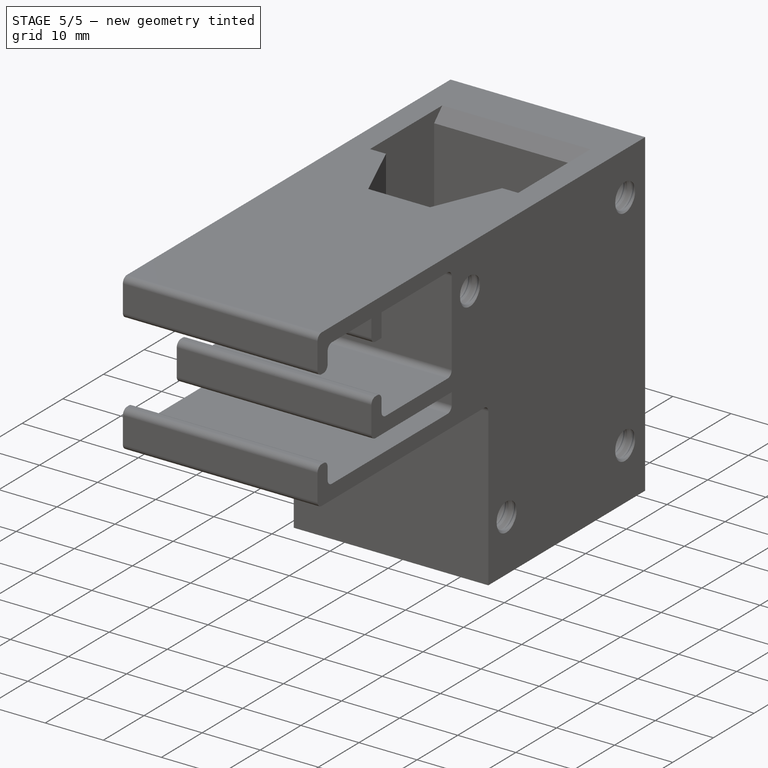
[diagram: stage 5 of 5 — iso view after this stage's code; geometry added in this stage tinted green]
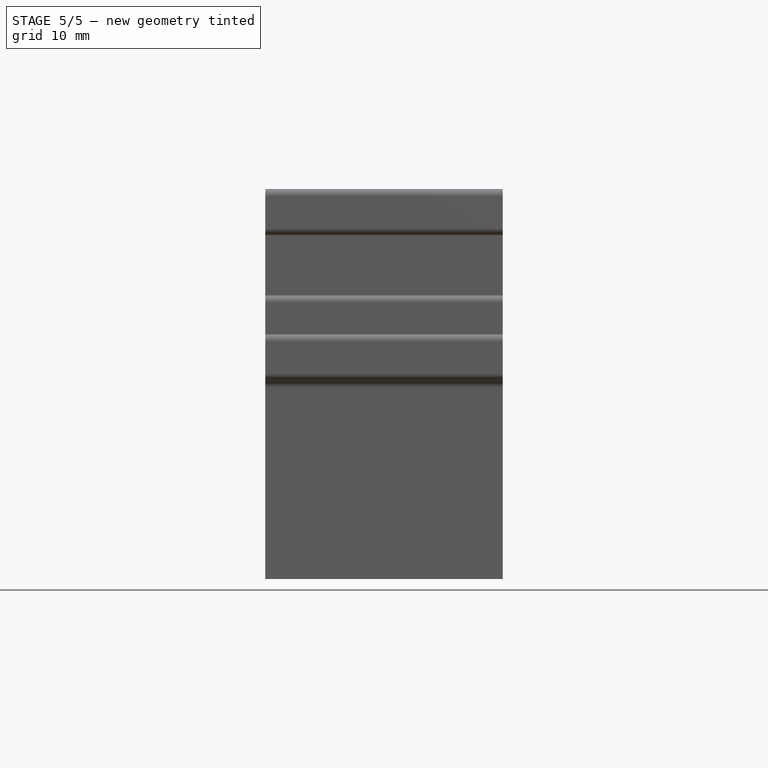
[diagram: stage 5 of 5 — front view after this stage's code; geometry added in this stage tinted green]
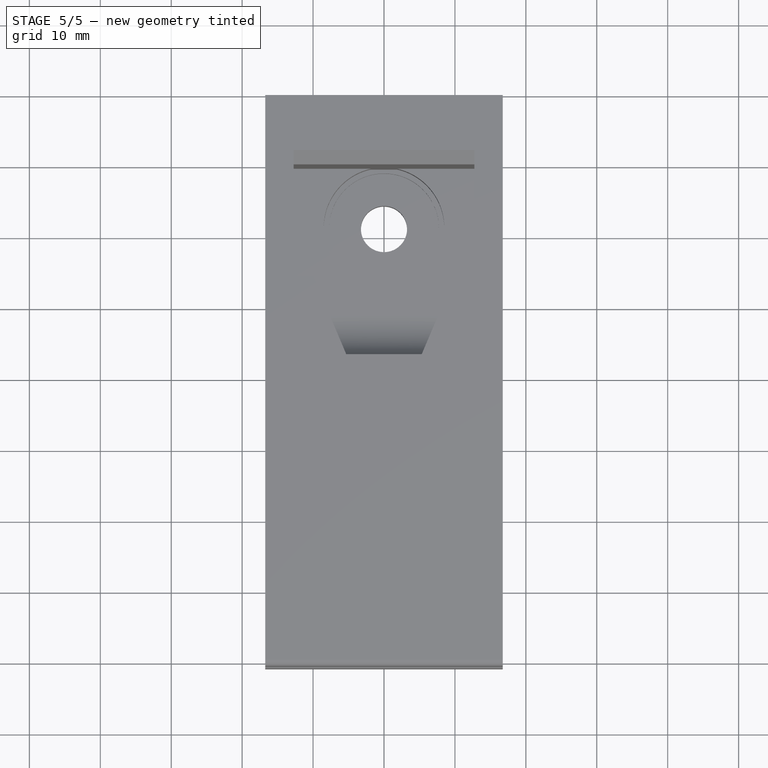
[diagram: stage 5 of 5 — top view after this stage's code; geometry added in this stage tinted green]
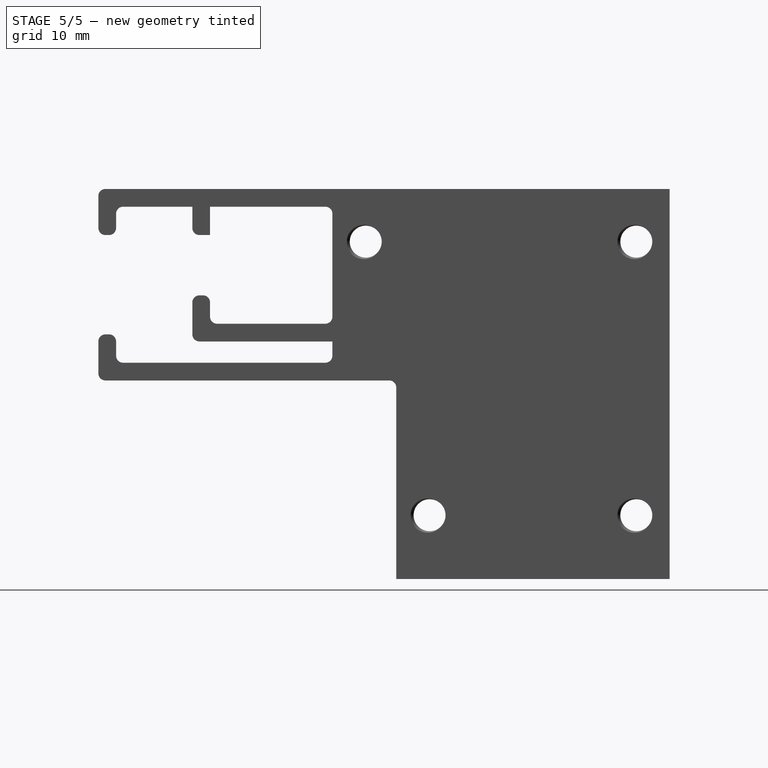
[diagram: stage 5 of 5 — right view after this stage's code; geometry added in this stage tinted green]
FEATURE [PartDesign::SubtractiveHelix] SubtractiveHelix
  Angle = 0
  Axis = (-1.2,0,0)
  Base = (-16.75,14.575,47.5729)
  BaseFeature = -> Pocket005
  Growth = 0
  HasBeenEdited = true
  Height = 100
  LeftHanded = false
  Mode = 0
  Outside = false
  Pitch = 1.6
  Profile = -> Sketch011
  ReferenceAxis = -> Sketch011 [Axis]
  Refine = true
  Reversed = true
  Suppressed = false
  Tolerance = 0.1
  Turns = 62.5
FEATURE [PartDesign::SubtractiveHelix] SubtractiveHelix001
  Angle = 0
  Axis = (-1.2,0,0)
  Base = (-16.75,-23.575,47.5729)
  BaseFeature = -> SubtractiveHelix
  Growth = 0
  HasBeenEdited = true
  Height = 100
  LeftHanded = false
  Mode = 0
  Outside = false
  Pitch = 1.6
  Profile = -> Sketch012
  ReferenceAxis = -> Sketch012 [Axis4]
  Refine = true
  Reversed = true
  Suppressed = false
  Tolerance = 0.1
  Turns = 62.5
FEATURE [PartDesign::SubtractiveHelix] SubtractiveHelix002
  Angle = 0
  Axis = (-1,0,0)
  Base = (-16.75,14.575,9)
  BaseFeature = -> SubtractiveHelix001
  Growth = 0
  HasBeenEdited = true
  Height = 100
  LeftHanded = false
  Mode = 0
  Outside = false
  Pitch = 1.6
  Profile = -> Sketch013
  ReferenceAxis = -> Sketch013 [H_Axis]
  Refine = true
  Reversed = true
  Suppressed = false
  Tolerance = 0.1
  Turns = 62.5
FEATURE [PartDesign::SubtractiveHelix] SubtractiveHelix003
  Angle = 0
  Axis = (-2.3,0,0)
  Base = (-16.75,-14.575,9)
  BaseFeature = -> SubtractiveHelix002
  Growth = 0
  HasBeenEdited = true
  Height = 100
  LeftHanded = false
  Mode = 0
  Outside = false
  Pitch = 1.6
  Profile = -> Sketch014
  ReferenceAxis = -> Sketch014 [Axis4]
  Refine = true
  Reversed = true
  Suppressed = false
  Tolerance = 0.1
  Turns = 62.5
FEATURE [PartDesign::Body] Body  label="-Full"
  AllowCompound = false
  Group = -> [Sketch,Pad,Sketch001,Pad001,Sketch002,Pad002,Sketch003,Pocket,Sketch004,Pad003,Sketch005,Pad004,Sketch006,Pocket001,Fillet,Sketch007,Pad005,Sketch008,Pocket002,Chamfer,Fillet001,DatumPlane,DatumPlane002,Sketch011,Sketch012,Sketch013,Sketch014,Sketch015,Pocket005,SubtractiveHelix,SubtractiveHelix001,SubtractiveHelix002,SubtractiveHelix003]
  Origin = -> Origin
  Tip = -> SubtractiveHelix003
FEATURE [PartDesign::FeatureBase] Clone
  BaseFeature = -> Body
  Suppressed = false
FEATURE [PartDesign::FeatureBase] Clone001
  BaseFeature = -> Body
  Suppressed = false
FEATURE [Sketcher::SketchObject] Sketch009
  ArcFitTolerance = 1e-06
  AttachmentSupport = -> [Clone]
  ExternalGeometry = -> [Clone]
  FullyConstrained = true
  MakeInternals = false
  MapMode = 5
  Placement = pos=(0,0,55) rot=(0,0,1;0rad)
  sketch-geometry (4):
    g0: LineSegment StartX=0 StartY=-61.275 StartZ=0 EndX=16.75 EndY=-61.275 EndZ=0
    g1: LineSegment StartX=16.75 StartY=-61.275 StartZ=0 EndX=16.75 EndY=19.275 EndZ=0
    g2: LineSegment StartX=16.75 StartY=19.275 StartZ=0 EndX=0 EndY=19.275 EndZ=0
    g3: LineSegment StartX=0 StartY=19.275 StartZ=0 EndX=0 EndY=-61.275 EndZ=0
  constraints (10):
    c: Coincident(g0,g1)
    c: Coincident(g1,g2)
    c: Coincident(g2,g3)
    c: Coincident(g3,g0)
    c: Horizontal(g0)
    c: Horizontal(g2)
    c: Vertical(g1)
    c: Vertical(g3)
    c: Symmetric(g-4,g-4,g0)
    c: Coincident(g1,g-3)
FEATURE [PartDesign::Pocket] Pocket003
  BaseFeature = -> Clone
  Direction = (0,0,-1)
  Length = 5
  Length2 = 5
  Profile = -> Sketch009
  ReferenceAxis = -> Sketch009 [N_Axis]
  Refine = true
  Suppressed = false
  Type = 1
FEATURE [PartDesign::Body] Body001  label="-Left"
  AllowCompound = false
  Group = -> [Clone,Sketch009,Pocket003]
  Origin = -> Origin001
  Tip = -> Pocket003
FEATURE [Sketcher::SketchObject] Sketch010
  ArcFitTolerance = 1e-06
  AttachmentSupport = -> [Clone001]
  ExternalGeometry = -> [Clone001]
  FullyConstrained = true
  MakeInternals = false
  MapMode = 5
  Placement = pos=(0,0,55) rot=(0,0,1;0rad)
  sketch-geometry (4):
    g0: LineSegment StartX=-16.75 StartY=19.275 StartZ=0 EndX=-16.75 EndY=-61.275 EndZ=0
    g1: LineSegment StartX=-16.75 StartY=-61.275 StartZ=0 EndX=0 EndY=-61.275 EndZ=0
    g2: LineSegment StartX=0 StartY=-61.275 StartZ=0 EndX=0 EndY=19.275 EndZ=0
    g3: LineSegment StartX=0 StartY=19.275 StartZ=0 EndX=-16.75 EndY=19.275 EndZ=0
  constraints (10):
    c: Coincident(g0,g1)
    c: Coincident(g1,g2)
    c: Coincident(g2,g3)
    c: Coincident(g3,g0)
    c: Vertical(g0)
    c: Vertical(g2)
    c: Horizontal(g1)
    c: Horizontal(g3)
    c: Coincident(g0,g-4)
    c: Symmetric(g-3,g-3,g1)
FEATURE [PartDesign::Pocket] Pocket004
  BaseFeature = -> Clone001
  Direction = (0,0,-1)
  Length = 5
  Length2 = 5
  Profile = -> Sketch010
  ReferenceAxis = -> Sketch010 [N_Axis]
  Refine = true
  Suppressed = false
  Type = 1
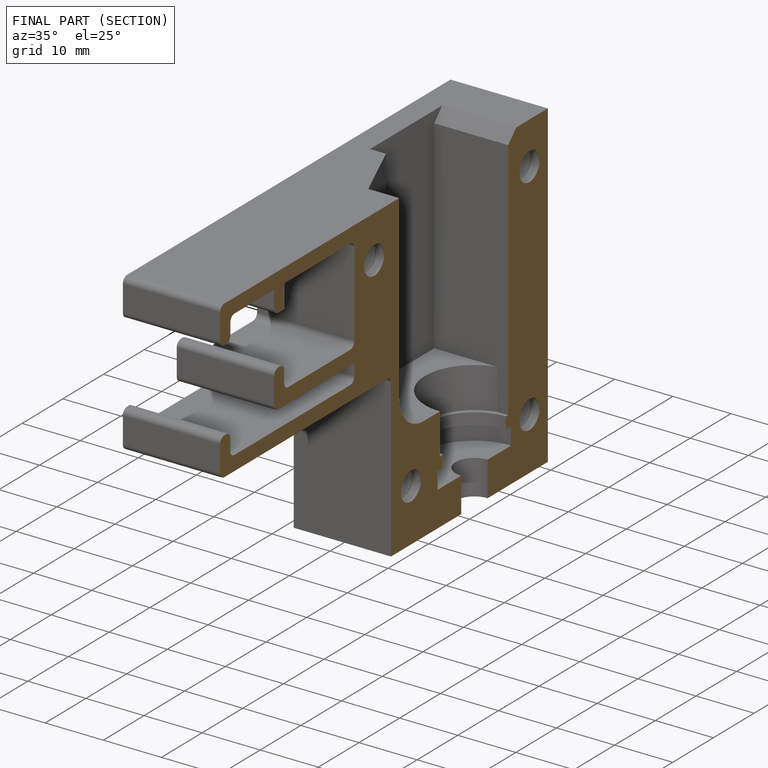
[diagram: finished part — half-section view (interior)]
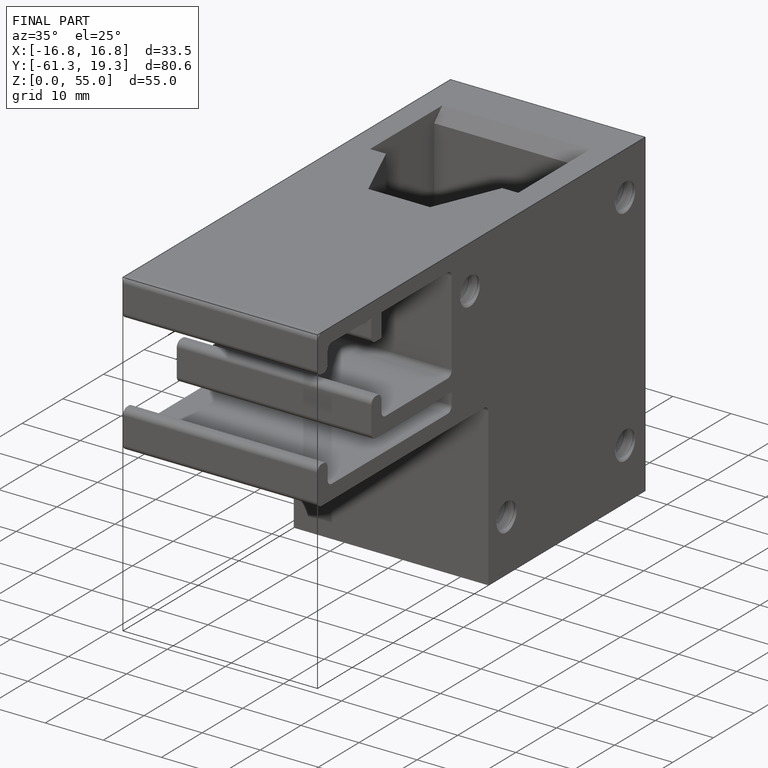
[diagram: finished part — iso view with bounding-box wireframe]
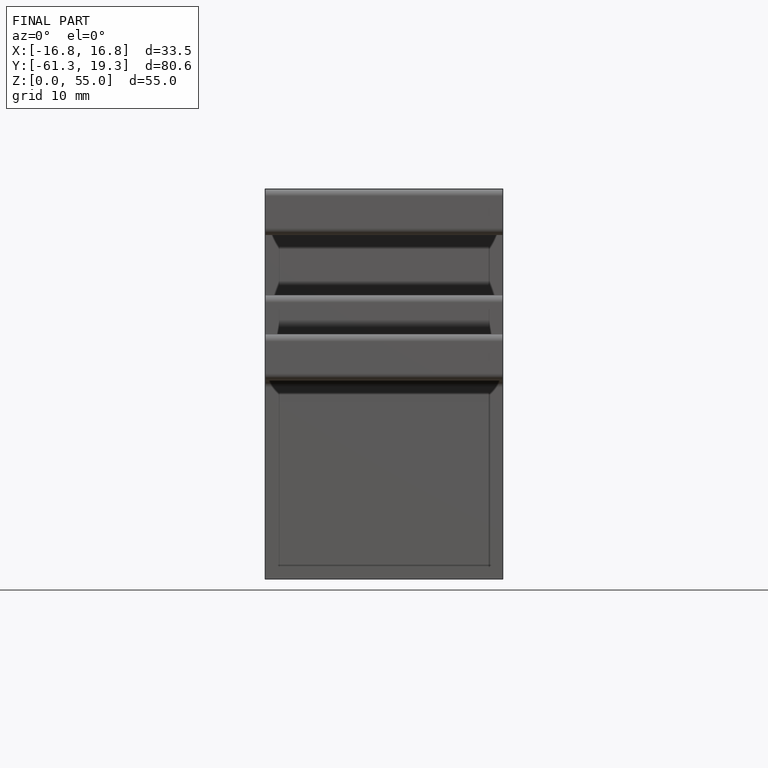
[diagram: finished part — front view with bounding-box wireframe]
